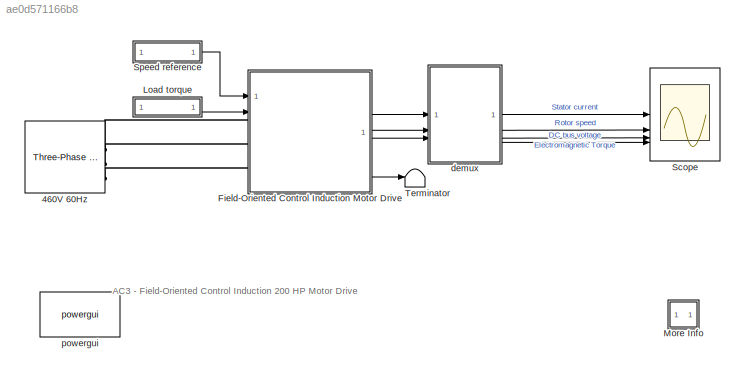
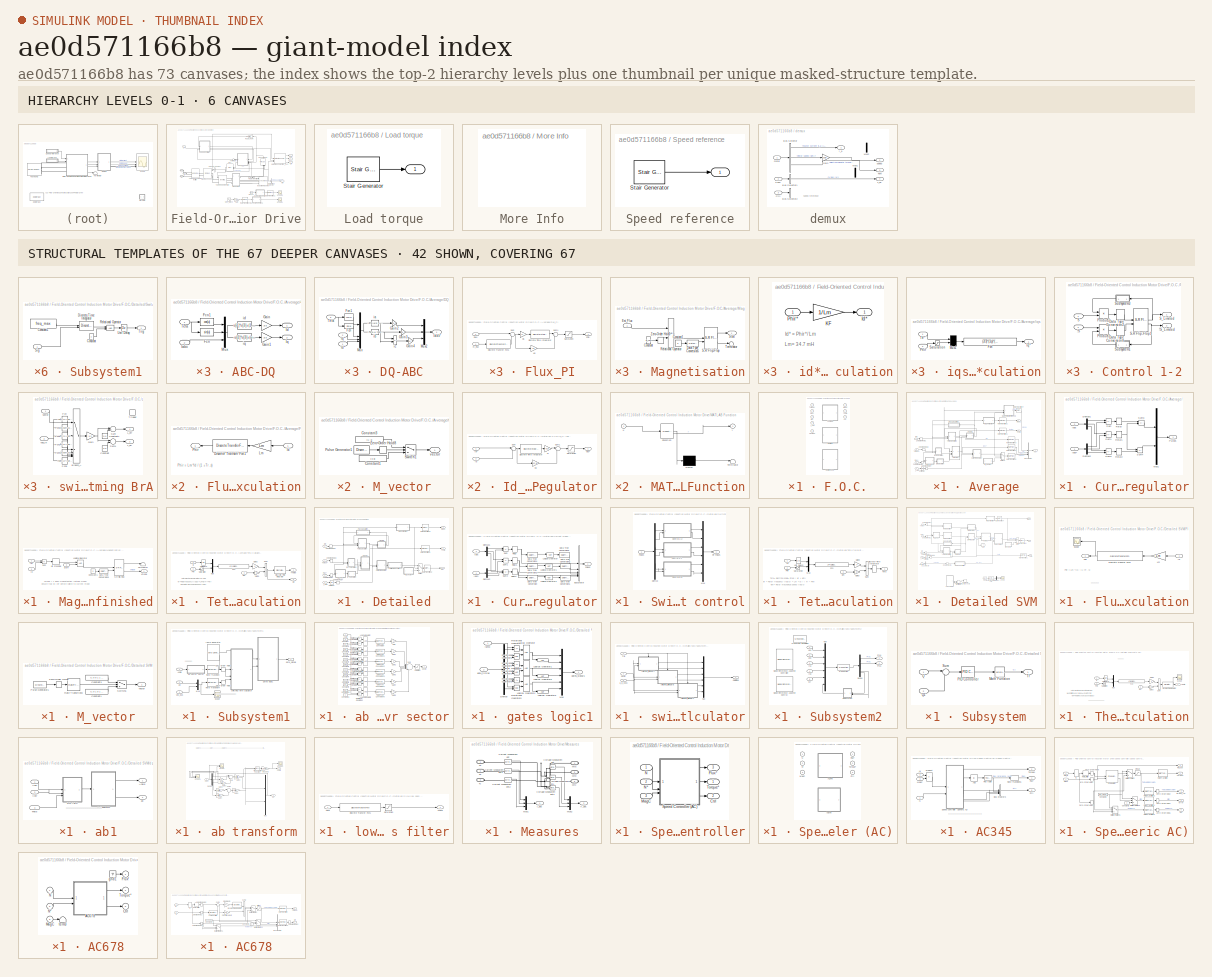
[diagram: thumbnail index - top-2 hierarchy levels (6 canvases) + 42 structural-template representatives of the remaining 67 canvases]
MODEL slx_ae0d571166b8
KIND model
CONFIG AbsTol = auto
CONFIG EnableMultiTasking = on
CONFIG FixedStep = Ts
CONFIG MaxStep = auto
CONFIG MinStep = auto
CONFIG PreLoadFcn = Ts = 2e-6;
CONFIG RelTol = 1e-3
CONFIG SampleTimeConstraint = Unconstrained
CONFIG SolverName = FixedStepDiscrete
CONFIG StartTime = 0.0
CONFIG StopTime = 3
BLOCK [Reference] 460V 60Hz  REF=spsThreePhaseSourceLib/Three-Phase Source
  LibrarySourceBlock = sps_lib/Sources/Three-Phase Source
  SourceBlock = spsThreePhaseSourceLib/Three-Phase Source
  SourceType = Three-Phase Source
BLOCK [SubSystem] Field-Oriented Control Induction Motor Drive
  AncestorBlock = electricdrivelib/AC drives/Field-Oriented Control\nInduction Motor Drive
  DialogController = POWERSYS.PowerSysDialog
  LibrarySourceBlock = electricdrivelib/AC drives/Field-Oriented Control\nInduction Motor Drive
  LoadFcn = if ~isempty(get_param(gcb,'UserData')) \n      UserDataToSimulinkMask(gcbh,get_param(gcb,'driveType'));  \n      set_param(gcb, 'UserData',[]);\n      set_param(gcb,'UserDataPersistent','off');\nend \n\nif strcmp(get_param(gcb,'AverageValue'),'on')\n    set_param(gcb,'modelDetailLevel','Average');\nend
  OpenFcn = sps_rtmsupport('OpenFcn',gcbh)
BLOCK [PMIOPort] Field-Oriented Control Induction Motor Drive/A
  Side = Left
BLOCK [PMIOPort] Field-Oriented Control Induction Motor Drive/B
  Port = 2
  Side = Left
BLOCK [Reference] Field-Oriented Control Induction Motor Drive/Braking chopper  REF=spsDrivesDcBusModel/DC Bus 
  SourceBlock = spsDrivesDcBusModel/DC Bus
  SourceType = DC Bus
BLOCK [PMIOPort] Field-Oriented Control Induction Motor Drive/C
  Port = 3
  Side = Left
BLOCK [Clock] Field-Oriented Control Induction Motor Drive/Clock2
  Commented = on
  Decimation = 3
BLOCK [Outport] Field-Oriented Control Induction Motor Drive/Conv.
  Port = 2
  VectorParamsAs1DForOutWhenUnconnected = off
BLOCK [Outport] Field-Oriented Control Induction Motor Drive/Ctrl
  Port = 3
  VectorParamsAs1DForOutWhenUnconnected = off
BLOCK [SubSystem] Field-Oriented Control Induction Motor Drive/F.O.C.
  AncestorBlock = spsFieldOrientedControllerLib/Field-Oriented Controller
  AttributesFormatString = %<BlockChoice>
  DialogController = POWERSYS.PowerSysDialog
  LabelModeActiveChoice = Detailed_SVM
  LibrarySourceBlock = spsFieldOrientedControllerLib/Field-Oriented Controller
  OpenFcn = sps_rtmsupport('OpenFcn',gcbh)
  Variant = on
  VariantControlMode = label
BLOCK [SubSystem] Field-Oriented Control Induction Motor Drive/F.O.C./Average
  VariantControl = Average
BLOCK [SubSystem] Field-Oriented Control Induction Motor Drive/F.O.C./Average/ABC-DQ
  NameLocation = top
BLOCK [Fcn] Field-Oriented Control Induction Motor Drive/F.O.C./Average/ABC-DQ/Fcn
  Expr = sin(u)
BLOCK [Fcn] Field-Oriented Control Induction Motor Drive/F.O.C./Average/ABC-DQ/Fcn1
  Expr = cos(u)
BLOCK [Gain] Field-Oriented Control Induction Motor Drive/F.O.C./Average/ABC-DQ/Gain
  Gain = 2/3
  OutDataTypeStr = Inherit: Same as input
  ParamDataTypeStr = Inherit: Same as input
  SaturateOnIntegerOverflow = on
BLOCK [Gain] Field-Oriented Control Induction Motor Drive/F.O.C./Average/ABC-DQ/Gain1
  Gain = 2/3
  OutDataTypeStr = Inherit: Same as input
  ParamDataTypeStr = Inherit: Same as input
  SaturateOnIntegerOverflow = on
BLOCK [Inport] Field-Oriented Control Induction Motor Drive/F.O.C./Average/ABC-DQ/Iabc
  Port = 2
BLOCK [Outport] Field-Oriented Control Induction Motor Drive/F.O.C./Average/ABC-DQ/Id
  InitialOutput = 0
  VectorParamsAs1DForOutWhenUnconnected = off
BLOCK [Outport] Field-Oriented Control Induction Motor Drive/F.O.C./Average/ABC-DQ/Iq
  InitialOutput = 0
  Port = 2
  VectorParamsAs1DForOutWhenUnconnected = off
BLOCK [Mux] Field-Oriented Control Induction Motor Drive/F.O.C./Average/ABC-DQ/Mux
  Inputs = [1 1 3]
BLOCK [Inport] Field-Oriented Control Induction Motor Drive/F.O.C./Average/ABC-DQ/Teta
BLOCK [Fcn] Field-Oriented Control Induction Motor Drive/F.O.C./Average/ABC-DQ/id
  Expr = u[1]*u[3]+(1.7320508*u[2]-u[1])*u[4]*0.5+(-u[1]-1.7320508*u[2])*u[5]*0.5
  NameLocation = top
BLOCK [Fcn] Field-Oriented Control Induction Motor Drive/F.O.C./Average/ABC-DQ/iq
  Expr = -u[2]*u[3]+(u[2]+1.7320508*u[1])*u[4]*0.5+(u[2]-1.7320508*u[1])*u[5]*0.5
BLOCK [BusCreator] Field-Oriented Control Induction Motor Drive/F.O.C./Average/Bus Creator
  DisplayOption = bar
  InheritFromInputs = on
  Inputs = 4
BLOCK [SubSystem] Field-Oriented Control Induction Motor Drive/F.O.C./Average/Current Regulator
  NameLocation = top
  TreatAsAtomicUnit = on
BLOCK [Demux] Field-Oriented Control Induction Motor Drive/F.O.C./Average/Current Regulator/Demux1
  DisplayOption = none
  Outputs = 3
BLOCK [Demux] Field-Oriented Control Induction Motor Drive/F.O.C./Average/Current Regulator/Demux2
  DisplayOption = none
  Outputs = 3
BLOCK [Inport] Field-Oriented Control Induction Motor Drive/F.O.C./Average/Current Regulator/Iabc
  Port = 2
BLOCK [Inport] Field-Oriented Control Induction Motor Drive/F.O.C./Average/Current Regulator/Iabc*
BLOCK [Mux] Field-Oriented Control Induction Motor Drive/F.O.C./Average/Current Regulator/Mux1
  Inputs = 2
BLOCK [Outport] Field-Oriented Control Induction Motor Drive/F.O.C./Average/Current Regulator/Pulses
  InitialOutput = 0
  VectorParamsAs1DForOutWhenUnconnected = off
BLOCK [Relay] Field-Oriented Control Induction Motor Drive/F.O.C./Average/Current Regulator/Relay
  OffSwitchValue = -0
  OnSwitchValue = 0
BLOCK [Relay] Field-Oriented Control Induction Motor Drive/F.O.C./Average/Current Regulator/Relay1
  OffSwitchValue = -0
  OnSwitchValue = 0
BLOCK [Relay] Field-Oriented Control Induction Motor Drive/F.O.C./Average/Current Regulator/Relay2
  OffSwitchValue = -0
  OnSwitchValue = 0
BLOCK [Sum] Field-Oriented Control Induction Motor Drive/F.O.C./Average/Current Regulator/Sum
  IconShape = rectangular
  InputSameDT = on
  Inputs = -+
  OutDataTypeStr = Inherit: Same as first input
  SaturateOnIntegerOverflow = on
BLOCK [Sum] Field-Oriented Control Induction Motor Drive/F.O.C./Average/Current Regulator/Sum1
  IconShape = rectangular
  InputSameDT = on
  Inputs = -+
  OutDataTypeStr = Inherit: Same as first input
  SaturateOnIntegerOverflow = on
BLOCK [Sum] Field-Oriented Control Induction Motor Drive/F.O.C./Average/Current Regulator/Sum2
  IconShape = rectangular
  InputSameDT = on
  Inputs = -+
  OutDataTypeStr = Inherit: Same as first input
  SaturateOnIntegerOverflow = on
BLOCK [Sum] Field-Oriented Control Induction Motor Drive/F.O.C./Average/Current Regulator/Sum3
  IconShape = rectangular
  Inputs = +-
BLOCK [Sum] Field-Oriented Control Induction Motor Drive/F.O.C./Average/Current Regulator/Sum4
  IconShape = rectangular
  Inputs = +-
BLOCK [SubSystem] Field-Oriented Control Induction Motor Drive/F.O.C./Average/DQ-ABC
  NameLocation = top
BLOCK [Fcn] Field-Oriented Control Induction Motor Drive/F.O.C./Average/DQ-ABC/Fcn
  Expr = sin(u)
BLOCK [Fcn] Field-Oriented Control Induction Motor Drive/F.O.C./Average/DQ-ABC/Fcn1
  Expr = cos(u)
BLOCK [Gain] Field-Oriented Control Induction Motor Drive/F.O.C./Average/DQ-ABC/Gain2
  OutDataTypeStr = Inherit: Same as input
  ParamDataTypeStr = Inherit: Same as input
  SaturateOnIntegerOverflow = on
BLOCK [Gain] Field-Oriented Control Induction Motor Drive/F.O.C./Average/DQ-ABC/Gain3
  OutDataTypeStr = Inherit: Same as input
  ParamDataTypeStr = Inherit: Same as input
  SaturateOnIntegerOverflow = on
BLOCK [Gain] Field-Oriented Control Induction Motor Drive/F.O.C./Average/DQ-ABC/Gain4
  OutDataTypeStr = Inherit: Same as input
  ParamDataTypeStr = Inherit: Same as input
  SaturateOnIntegerOverflow = on
BLOCK [Outport] Field-Oriented Control Induction Motor Drive/F.O.C./Average/DQ-ABC/Iabc*
  InitialOutput = 0
  VectorParamsAs1DForOutWhenUnconnected = off
BLOCK [Inport] Field-Oriented Control Induction Motor Drive/F.O.C./Average/DQ-ABC/Id*
BLOCK [Inport] Field-Oriented Control Induction Motor Drive/F.O.C./Average/DQ-ABC/Iq*
  Port = 2
BLOCK [Mux] Field-Oriented Control Induction Motor Drive/F.O.C./Average/DQ-ABC/Mux
BLOCK [Mux] Field-Oriented Control Induction Motor Drive/F.O.C./Average/DQ-ABC/Mux2
  Inputs = 3
BLOCK [Inport] Field-Oriented Control Induction Motor Drive/F.O.C./Average/DQ-ABC/Teta
  Port = 3
BLOCK [Fcn] Field-Oriented Control Induction Motor Drive/F.O.C./Average/DQ-ABC/ia
  Expr = -u[3]*u[2] + u[4]*u[1]
  NameLocation = top
BLOCK [Fcn] Field-Oriented Control Induction Motor Drive/F.O.C./Average/DQ-ABC/ib
  Expr = (-u[1]+1.7320508*u[2])*u[4]*0.5+(u[2]+1.7320508*u[1])*u[3]*0.5
BLOCK [Sum] Field-Oriented Control Induction Motor Drive/F.O.C./Average/DQ-ABC/ic
  IconShape = rectangular
  InputSameDT = on
  Inputs = --
  OutDataTypeStr = Inherit: Same as first input
  SaturateOnIntegerOverflow = on
BLOCK [SubSystem] Field-Oriented Control Induction Motor Drive/F.O.C./Average/Flux Calculation
  NameLocation = top
BLOCK [DiscreteTransferFcn] Field-Oriented Control Induction Motor Drive/F.O.C./Average/Flux Calculation/Discrete Transfer Fcn1
  Denominator = [1 -exp(-(Rr/(Lr))*Tvect)]
  InputPortMap = u0
  NameLocation = top
  Numerator = [1-exp(-(Rr/(Lr))*Tvect)]
  SampleTime = Tvect
BLOCK [Inport] Field-Oriented Control Induction Motor Drive/F.O.C./Average/Flux Calculation/Id
BLOCK [Gain] Field-Oriented Control Induction Motor Drive/F.O.C./Average/Flux Calculation/Lm
  Gain = Lm
  OutDataTypeStr = Inherit: Same as input
  ParamDataTypeStr = Inherit: Same as input
  SaturateOnIntegerOverflow = on
BLOCK [Outport] Field-Oriented Control Induction Motor Drive/F.O.C./Average/Flux Calculation/Phir
  VectorParamsAs1DForOutWhenUnconnected = off
BLOCK [Inport] Field-Oriented Control Induction Motor Drive/F.O.C./Average/Flux*
  Port = 2
BLOCK [SubSystem] Field-Oriented Control Induction Motor Drive/F.O.C./Average/Flux_PI
  NameLocation = top
BLOCK [DiscreteTransferFcn] Field-Oriented Control Induction Motor Drive/F.O.C./Average/Flux_PI/Discrete Transfer Fcn1
  Denominator = [1 -exp(-(2*pi*fc)*Tvect)]
  InputPortMap = u0
  Numerator = [1-exp(-(2*pi*fc)*Tvect)]
  SampleTime = Tvect
BLOCK [DiscreteIntegrator] Field-Oriented Control Induction Motor Drive/F.O.C./Average/Flux_PI/Discrete-Time Integrator
  ICPrevOutput = DiscIntNeverNeededParam
  ICPrevScaledInput = DiscIntNeverNeededParam
  IntegratorMethod = Integration: Trapezoidal
  LimitOutput = on
  LowerSaturationLimit = csat(1)
  SampleTime = Tvect
  UpperSaturationLimit = csat(2)
BLOCK [Inport] Field-Oriented Control Induction Motor Drive/F.O.C./Average/Flux_PI/Flux*
  Port = 2
BLOCK [Gain] Field-Oriented Control Induction Motor Drive/F.O.C./Average/Flux_PI/Ki1
  Gain = ki
  OutDataTypeStr = Inherit: Same as input
  ParamDataTypeStr = Inherit: Same as input
  SaturateOnIntegerOverflow = on
BLOCK [Gain] Field-Oriented Control Induction Motor Drive/F.O.C./Average/Flux_PI/Kp
  Gain = kp
  OutDataTypeStr = Inherit: Same as input
  ParamDataTypeStr = Inherit: Same as input
  SaturateOnIntegerOverflow = on
BLOCK [Outport] Field-Oriented Control Induction Motor Drive/F.O.C./Average/Flux_PI/Phir*
  VectorParamsAs1DForOutWhenUnconnected = off
BLOCK [Saturate] Field-Oriented Control Induction Motor Drive/F.O.C./Average/Flux_PI/Saturation
  LowerLimit = csat(1)
  UpperLimit = csat(2)
BLOCK [Sum] Field-Oriented Control Induction Motor Drive/F.O.C./Average/Flux_PI/Sum
  Inputs = |+-
  SaturateOnIntegerOverflow = on
BLOCK [Sum] Field-Oriented Control Induction Motor Drive/F.O.C./Average/Flux_PI/Sum1
  Inputs = |++
  SaturateOnIntegerOverflow = on
BLOCK [Inport] Field-Oriented Control Induction Motor Drive/F.O.C./Average/Flux_PI/m_Flux
BLOCK [Inport] Field-Oriented Control Induction Motor Drive/F.O.C./Average/I_ABC
  Port = 4
BLOCK [SubSystem] Field-Oriented Control Induction Motor Drive/F.O.C./Average/M_vector
BLOCK [Constant] Field-Oriented Control Induction Motor Drive/F.O.C./Average/M_vector/Constant1
  Value = [0 0]
BLOCK [Constant] Field-Oriented Control Induction Motor Drive/F.O.C./Average/M_vector/Constant3
  Value = [1 -1]
BLOCK [DiscretePulseGenerator] Field-Oriented Control Induction Motor Drive/F.O.C./Average/M_vector/Pulse Generator1
  Period = 8
  PulseWidth = 2
  SampleTime = Tvect
BLOCK [Switch] Field-Oriented Control Induction Motor Drive/F.O.C./Average/M_vector/Switch1
  InputSameDT = off
  Threshold = 0.5
BLOCK [ZeroOrderHold] Field-Oriented Control Induction Motor Drive/F.O.C./Average/M_vector/Zero-Order Hold8
  SampleTime = Tvect
BLOCK [Outport] Field-Oriented Control Induction Motor Drive/F.O.C./Average/M_vector/vector
  VectorParamsAs1DForOutWhenUnconnected = off
BLOCK [Outport] Field-Oriented Control Induction Motor Drive/F.O.C./Average/MagC
  VectorParamsAs1DForOutWhenUnconnected = off
BLOCK [SubSystem] Field-Oriented Control Induction Motor Drive/F.O.C./Average/Magnetisation
BLOCK [SubSystem] Field-Oriented Control Induction Motor Drive/F.O.C./Average/Magnetisation finished
BLOCK [Constant] Field-Oriented Control Induction Motor Drive/F.O.C./Average/Magnetisation finished/Constant1
  Value = 0
BLOCK [DataTypeConversion] Field-Oriented Control Induction Motor Drive/F.O.C./Average/Magnetisation finished/Data Type Conversion5
BLOCK [HitCross] Field-Oriented Control Induction Motor Drive/F.O.C./Average/Magnetisation finished/Hit Crossing
BLOCK [Inport] Field-Oriented Control Induction Motor Drive/F.O.C./Average/Magnetisation finished/Id
  Port = 2
BLOCK [Inport] Field-Oriented Control Induction Motor Drive/F.O.C./Average/Magnetisation finished/Id*
BLOCK [Logic] Field-Oriented Control Induction Motor Drive/F.O.C./Average/Magnetisation finished/Logical Operator
  AllPortsSameDT = off
  OutDataTypeStr = boolean
BLOCK [Reference] Field-Oriented Control Induction Motor Drive/F.O.C./Average/Magnetisation finished/S-R Flip-Flop  REF=simulink_extras/Flip Flops/S-R
Flip-Flop
  SourceBlock = simulink_extras/Flip Flops/S-R\nFlip-Flop
  SourceType = SRFlipFlop
BLOCK [Inport] Field-Oriented Control Induction Motor Drive/F.O.C./Average/Magnetisation finished/Start
  Port = 3
BLOCK [Sum] Field-Oriented Control Induction Motor Drive/F.O.C./Average/Magnetisation finished/Sum
  IconShape = rectangular
  Inputs = +-
BLOCK [Terminator] Field-Oriented Control Induction Motor Drive/F.O.C./Average/Magnetisation finished/Terminator
BLOCK [Outport] Field-Oriented Control Induction Motor Drive/F.O.C./Average/Magnetisation finished/Vmode
  VectorParamsAs1DForOutWhenUnconnected = off
BLOCK [Constant] Field-Oriented Control Induction Motor Drive/F.O.C./Average/Magnetisation/Constant
  Value = in_flux
BLOCK [Constant] Field-Oriented Control Induction Motor Drive/F.O.C./Average/Magnetisation/Constant1
  Value = 0
BLOCK [DataTypeConversion] Field-Oriented Control Induction Motor Drive/F.O.C./Average/Magnetisation/Data Type Conversion5
BLOCK [Inport] Field-Oriented Control Induction Motor Drive/F.O.C./Average/Magnetisation/Est_Flux
BLOCK [RelationalOperator] Field-Oriented Control Induction Motor Drive/F.O.C./Average/Magnetisation/Relational Operator
  InputSameDT = off
BLOCK [Reference] Field-Oriented Control Induction Motor Drive/F.O.C./Average/Magnetisation/S-R Flip-Flop  REF=simulink_extras/Flip Flops/S-R
Flip-Flop
  SourceBlock = simulink_extras/Flip Flops/S-R\nFlip-Flop
  SourceType = SRFlipFlop
BLOCK [Outport] Field-Oriented Control Induction Motor Drive/F.O.C./Average/Magnetisation/Start
  VectorParamsAs1DForOutWhenUnconnected = off
BLOCK [Terminator] Field-Oriented Control Induction Motor Drive/F.O.C./Average/Magnetisation/Terminator
BLOCK [ZeroOrderHold] Field-Oriented Control Induction Motor Drive/F.O.C./Average/Magnetisation/Zero-Order Hold5
  SampleTime = Tvect
BLOCK [RateTransition] Field-Oriented Control Induction Motor Drive/F.O.C./Average/Rate Transition1
  OutPortSampleTime = Ts
BLOCK [RateTransition] Field-Oriented Control Induction Motor Drive/F.O.C./Average/Rate Transition2
BLOCK [RateTransition] Field-Oriented Control Induction Motor Drive/F.O.C./Average/Rate Transition3
BLOCK [RateTransition] Field-Oriented Control Induction Motor Drive/F.O.C./Average/Rate Transition4
BLOCK [RateTransition] Field-Oriented Control Induction Motor Drive/F.O.C./Average/Rate Transition5
BLOCK [RateTransition] Field-Oriented Control Induction Motor Drive/F.O.C./Average/Rate Transition7
BLOCK [Switch] Field-Oriented Control Induction Motor Drive/F.O.C./Average/Switch2
  InputSameDT = off
  Threshold = 0.5
BLOCK [SubSystem] Field-Oriented Control Induction Motor Drive/F.O.C./Average/Teta Calculation
  NameLocation = top
BLOCK [DiscreteIntegrator] Field-Oriented Control Induction Motor Drive/F.O.C./Average/Teta Calculation/Discrete-Time Integrator
  ICPrevOutput = DiscIntNeverNeededParam
  ICPrevScaledInput = DiscIntNeverNeededParam
  IntegratorMethod = Integration: Trapezoidal
  SampleTime = Tvect
BLOCK [Fcn] Field-Oriented Control Induction Motor Drive/F.O.C./Average/Teta Calculation/Fcn
  Expr = Lm*u[1]/(u[2]*(Lr/Rr))
BLOCK [Gain] Field-Oriented Control Induction Motor Drive/F.O.C./Average/Teta Calculation/Gain2
  OutDataTypeStr = Inherit: Same as input
  ParamDataTypeStr = Inherit: Same as input
  SaturateOnIntegerOverflow = on
BLOCK [Gain] Field-Oriented Control Induction Motor Drive/F.O.C./Average/Teta Calculation/Gain3
  Gain = p
  OutDataTypeStr = Inherit: Same as input
  ParamDataTypeStr = Inherit: Same as input
  SaturateOnIntegerOverflow = on
BLOCK [Inport] Field-Oriented Control Induction Motor Drive/F.O.C./Average/Teta Calculation/Iq
BLOCK [Mux] Field-Oriented Control Induction Motor Drive/F.O.C./Average/Teta Calculation/Mux
  Inputs = 2
BLOCK [Inport] Field-Oriented Control Induction Motor Drive/F.O.C./Average/Teta Calculation/Phir
  Port = 2
BLOCK [Saturate] Field-Oriented Control Induction Motor Drive/F.O.C./Average/Teta Calculation/Saturation
  LowerLimit = 1e-3
  UpperLimit = inf
BLOCK [Sum] Field-Oriented Control Induction Motor Drive/F.O.C./Average/Teta Calculation/Sum
  IconShape = rectangular
  InputSameDT = on
  OutDataTypeStr = Inherit: Same as first input
  SaturateOnIntegerOverflow = on
BLOCK [Outport] Field-Oriented Control Induction Motor Drive/F.O.C./Average/Teta Calculation/Thetae
  InitialOutput = 0
  VectorParamsAs1DForOutWhenUnconnected = off
BLOCK [UnitDelay] Field-Oriented Control Induction Motor Drive/F.O.C./Average/Teta Calculation/Unit Delay5
  HasFrameUpgradeWarning = on
  NameLocation = top
  SampleTime = Tvect
BLOCK [Outport] Field-Oriented Control Induction Motor Drive/F.O.C./Average/Teta Calculation/we
  InitialOutput = 0
  Port = 2
  VectorParamsAs1DForOutWhenUnconnected = off
BLOCK [Inport] Field-Oriented Control Induction Motor Drive/F.O.C./Average/Teta Calculation/wm
  Port = 3
BLOCK [Outport] Field-Oriented Control Induction Motor Drive/F.O.C./Average/Theta
  Port = 2
  VectorParamsAs1DForOutWhenUnconnected = off
BLOCK [Inport] Field-Oriented Control Induction Motor Drive/F.O.C./Average/Torque*
BLOCK [UnitDelay] Field-Oriented Control Induction Motor Drive/F.O.C./Average/Unit Delay
  HasFrameUpgradeWarning = on
  SampleTime = -1
BLOCK [ZeroOrderHold] Field-Oriented Control Induction Motor Drive/F.O.C./Average/Zero-Order Hold1
  SampleTime = Tvect
BLOCK [ZeroOrderHold] Field-Oriented Control Induction Motor Drive/F.O.C./Average/Zero-Order Hold2
  SampleTime = Tvect
BLOCK [ZeroOrderHold] Field-Oriented Control Induction Motor Drive/F.O.C./Average/Zero-Order Hold3
  SampleTime = Tvect
BLOCK [ZeroOrderHold] Field-Oriented Control Induction Motor Drive/F.O.C./Average/Zero-Order Hold4
  SampleTime = Tvect
BLOCK [SubSystem] Field-Oriented Control Induction Motor Drive/F.O.C./Average/id* Calculation
  NameLocation = top
BLOCK [Outport] Field-Oriented Control Induction Motor Drive/F.O.C./Average/id* Calculation/Id*
  VectorParamsAs1DForOutWhenUnconnected = off
BLOCK [Gain] Field-Oriented Control Induction Motor Drive/F.O.C./Average/id* Calculation/KF
  Gain = 1/Lm
  OutDataTypeStr = Inherit: Same as input
  ParamDataTypeStr = Inherit: Same as input
  SaturateOnIntegerOverflow = on
BLOCK [Inport] Field-Oriented Control Induction Motor Drive/F.O.C./Average/id* Calculation/Phir*
BLOCK [SubSystem] Field-Oriented Control Induction Motor Drive/F.O.C./Average/iqs* Calculation
  NameLocation = top
BLOCK [Fcn] Field-Oriented Control Induction Motor Drive/F.O.C./Average/iqs* Calculation/Fcn
  Expr = (2/3)*(1/p)*(Lr/Lm)*u[1]/(u[2]+1e-3*0)
BLOCK [Outport] Field-Oriented Control Induction Motor Drive/F.O.C./Average/iqs* Calculation/Iq*
  InitialOutput = 0
  VectorParamsAs1DForOutWhenUnconnected = off
BLOCK [Mux] Field-Oriented Control Induction Motor Drive/F.O.C./Average/iqs* Calculation/Mux1
  Inputs = 2
BLOCK [Inport] Field-Oriented Control Induction Motor Drive/F.O.C./Average/iqs* Calculation/Phir
  Port = 2
BLOCK [Saturate] Field-Oriented Control Induction Motor Drive/F.O.C./Average/iqs* Calculation/Saturation
  LowerLimit = 1e-3
  UpperLimit = inf
BLOCK [Inport] Field-Oriented Control Induction Motor Drive/F.O.C./Average/iqs* Calculation/Te*
BLOCK [Outport] Field-Oriented Control Induction Motor Drive/F.O.C./Average/out
  Port = 3
  VectorParamsAs1DForOutWhenUnconnected = off
BLOCK [Inport] Field-Oriented Control Induction Motor Drive/F.O.C./Average/wm
  Port = 3
BLOCK [SubSystem] Field-Oriented Control Induction Motor Drive/F.O.C./Detailed
  VariantControl = Detailed
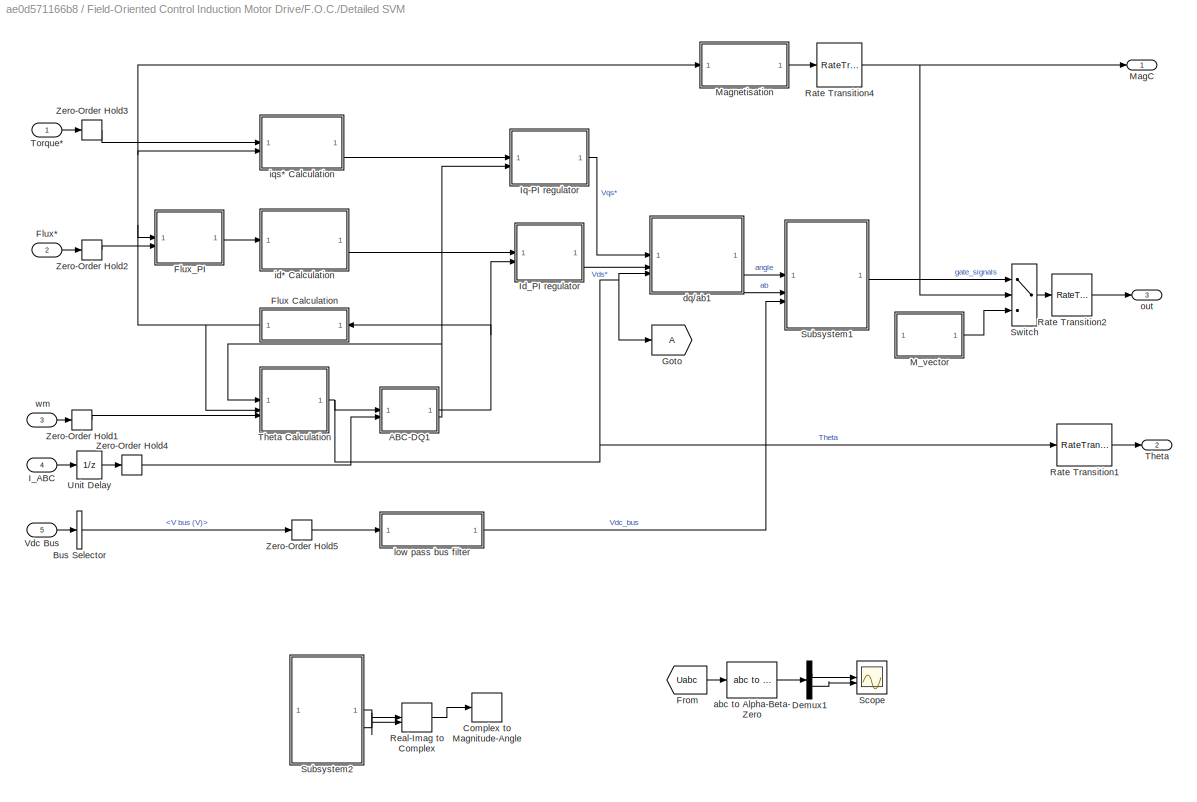
BLOCK [SubSystem] Field-Oriented Control Induction Motor Drive/F.O.C./Detailed SVM
  VariantControl = Detailed_SVM
BLOCK [SubSystem] Field-Oriented Control Induction Motor Drive/F.O.C./Detailed SVM/ABC-DQ1
  NameLocation = top
BLOCK [Fcn] Field-Oriented Control Induction Motor Drive/F.O.C./Detailed SVM/ABC-DQ1/Fcn
  Expr = sin(u)
BLOCK [Fcn] Field-Oriented Control Induction Motor Drive/F.O.C./Detailed SVM/ABC-DQ1/Fcn1
  Expr = cos(u)
BLOCK [Gain] Field-Oriented Control Induction Motor Drive/F.O.C./Detailed SVM/ABC-DQ1/Gain
  Gain = 2/3
  OutDataTypeStr = Inherit: Same as input
  ParamDataTypeStr = Inherit: Same as input
  SaturateOnIntegerOverflow = on
BLOCK [Gain] Field-Oriented Control Induction Motor Drive/F.O.C./Detailed SVM/ABC-DQ1/Gain1
  Gain = 2/3
  OutDataTypeStr = Inherit: Same as input
  ParamDataTypeStr = Inherit: Same as input
  SaturateOnIntegerOverflow = on
BLOCK [Inport] Field-Oriented Control Induction Motor Drive/F.O.C./Detailed SVM/ABC-DQ1/Iabc
  Port = 2
BLOCK [Outport] Field-Oriented Control Induction Motor Drive/F.O.C./Detailed SVM/ABC-DQ1/Id
  InitialOutput = 0
  VectorParamsAs1DForOutWhenUnconnected = off
BLOCK [Outport] Field-Oriented Control Induction Motor Drive/F.O.C./Detailed SVM/ABC-DQ1/Iq
  InitialOutput = 0
  Port = 2
  VectorParamsAs1DForOutWhenUnconnected = off
BLOCK [Mux] Field-Oriented Control Induction Motor Drive/F.O.C./Detailed SVM/ABC-DQ1/Mux
  Inputs = [1 1 3]
BLOCK [Inport] Field-Oriented Control Induction Motor Drive/F.O.C./Detailed SVM/ABC-DQ1/Theta
BLOCK [Fcn] Field-Oriented Control Induction Motor Drive/F.O.C./Detailed SVM/ABC-DQ1/id
  Expr = u[2]*u[3]+(-u[2]-1.7320508*u[1])*u[4]*0.5+(-u[2]+1.7320508*u[1])*u[5]*0.5
  NameLocation = top
BLOCK [Fcn] Field-Oriented Control Induction Motor Drive/F.O.C./Detailed SVM/ABC-DQ1/iq
  Expr = u[1]*u[3]+(1.7320508*u[2]-u[1]) *u[4]*0.5+(-u[1]-1.7320508*u[2])*u[5]*0.5
BLOCK [BusSelector] Field-Oriented Control Induction Motor Drive/F.O.C./Detailed SVM/Bus Selector
  OutputSignals = V bus (V)
BLOCK [ComplexToMagnitudeAngle] Field-Oriented Control Induction Motor Drive/F.O.C./Detailed SVM/Complex to Magnitude-Angle
  Commented = on
BLOCK [Demux] Field-Oriented Control Induction Motor Drive/F.O.C./Detailed SVM/Demux1
  Commented = on
  Outputs = 2
BLOCK [SubSystem] Field-Oriented Control Induction Motor Drive/F.O.C./Detailed SVM/Flux Calculation
  NameLocation = top
BLOCK [DiscreteTransferFcn] Field-Oriented Control Induction Motor Drive/F.O.C./Detailed SVM/Flux Calculation/Discrete Transfer Fcn1
  Denominator = [1 -exp(-(Rr/(Lr))*Tvect)]
  InputPortMap = u0
  NameLocation = top
  Numerator = [1-exp(-(Rr/(Lr))*Tvect)]
  SampleTime = Tvect
BLOCK [Inport] Field-Oriented Control Induction Motor Drive/F.O.C./Detailed SVM/Flux Calculation/Id
BLOCK [Gain] Field-Oriented Control Induction Motor Drive/F.O.C./Detailed SVM/Flux Calculation/Lm
  Gain = Lm
  OutDataTypeStr = Inherit: Same as input
  ParamDataTypeStr = Inherit: Same as input
  SaturateOnIntegerOverflow = on
BLOCK [Outport] Field-Oriented Control Induction Motor Drive/F.O.C./Detailed SVM/Flux Calculation/Phir
  VectorParamsAs1DForOutWhenUnconnected = off
BLOCK [Scope] Field-Oriented Control Induction Motor Drive/F.O.C./Detailed SVM/Flux Calculation/Scope
  Floating = off
  NameLocation = top
  NumInputPorts = 1
  ScopeSpecificationString = Simulink.scopes.TimeScopeBlockCfg('CurrentConfiguration', extmgr.ConfigurationSet(extmgr.Configuration('Core','General UI',true),extmgr.Configuration('Core','Source UI',true),extmgr.Configuration('Sources','WiredSimulink',true,'DataLoggingVariableName','Phir_1_514'),extmgr.Configuration('Visuals','Time Domain',true,'SerializedDisplays',{struct('MinYLimReal','-0.09845','MaxYLimReal','0.88605','YLab...<+1427ch>
BLOCK [Inport] Field-Oriented Control Induction Motor Drive/F.O.C./Detailed SVM/Flux*
  Port = 2
BLOCK [SubSystem] Field-Oriented Control Induction Motor Drive/F.O.C./Detailed SVM/Flux_PI
  NameLocation = top
BLOCK [DiscreteTransferFcn] Field-Oriented Control Induction Motor Drive/F.O.C./Detailed SVM/Flux_PI/Discrete Transfer Fcn1
  Denominator = [1 -exp(-(2*pi*fc)*Tvect)]
  InputPortMap = u0
  Numerator = [1-exp(-(2*pi*fc)*Tvect)]
  SampleTime = Tvect
BLOCK [DiscreteIntegrator] Field-Oriented Control Induction Motor Drive/F.O.C./Detailed SVM/Flux_PI/Discrete-Time Integrator
  ICPrevOutput = DiscIntNeverNeededParam
  ICPrevScaledInput = DiscIntNeverNeededParam
  IntegratorMethod = Integration: Trapezoidal
  LimitOutput = on
  LowerSaturationLimit = csat(1)
  SampleTime = Tvect
  UpperSaturationLimit = csat(2)
BLOCK [Inport] Field-Oriented Control Induction Motor Drive/F.O.C./Detailed SVM/Flux_PI/Flux*
  Port = 2
BLOCK [Gain] Field-Oriented Control Induction Motor Drive/F.O.C./Detailed SVM/Flux_PI/Ki1
  Gain = ki
  OutDataTypeStr = Inherit: Same as input
  ParamDataTypeStr = Inherit: Same as input
  SaturateOnIntegerOverflow = on
BLOCK [Gain] Field-Oriented Control Induction Motor Drive/F.O.C./Detailed SVM/Flux_PI/Kp
  Gain = kp
  OutDataTypeStr = Inherit: Same as input
  ParamDataTypeStr = Inherit: Same as input
  SaturateOnIntegerOverflow = on
BLOCK [Outport] Field-Oriented Control Induction Motor Drive/F.O.C./Detailed SVM/Flux_PI/Phir*
  VectorParamsAs1DForOutWhenUnconnected = off
BLOCK [Saturate] Field-Oriented Control Induction Motor Drive/F.O.C./Detailed SVM/Flux_PI/Saturation
  LowerLimit = csat(1)
  UpperLimit = csat(2)
BLOCK [Sum] Field-Oriented Control Induction Motor Drive/F.O.C./Detailed SVM/Flux_PI/Sum
  Inputs = |+-
  SaturateOnIntegerOverflow = on
BLOCK [Sum] Field-Oriented Control Induction Motor Drive/F.O.C./Detailed SVM/Flux_PI/Sum1
  Inputs = |++
  SaturateOnIntegerOverflow = on
BLOCK [Inport] Field-Oriented Control Induction Motor Drive/F.O.C./Detailed SVM/Flux_PI/m_Flux
BLOCK [From] Field-Oriented Control Induction Motor Drive/F.O.C./Detailed SVM/From
  Commented = on
  GotoTag = Uabc
BLOCK [Goto] Field-Oriented Control Induction Motor Drive/F.O.C./Detailed SVM/Goto
BLOCK [Inport] Field-Oriented Control Induction Motor Drive/F.O.C./Detailed SVM/I_ABC
  Port = 4
BLOCK [SubSystem] Field-Oriented Control Induction Motor Drive/F.O.C./Detailed SVM/Id_PI regulator
  NameLocation = top
BLOCK [DiscreteIntegrator] Field-Oriented Control Induction Motor Drive/F.O.C./Detailed SVM/Id_PI regulator/Discrete-Time Integrator
  ICPrevOutput = DiscIntNeverNeededParam
  ICPrevScaledInput = DiscIntNeverNeededParam
  IntegratorMethod = Integration: Trapezoidal
  LimitOutput = on
  LowerSaturationLimit = -1
  SampleTime = Tvect
  UpperSaturationLimit = 1
BLOCK [Inport] Field-Oriented Control Induction Motor Drive/F.O.C./Detailed SVM/Id_PI regulator/Id
  Port = 2
BLOCK [Inport] Field-Oriented Control Induction Motor Drive/F.O.C./Detailed SVM/Id_PI regulator/Id*
BLOCK [Gain] Field-Oriented Control Induction Motor Drive/F.O.C./Detailed SVM/Id_PI regulator/Ki
  Gain = ki_Id
  OutDataTypeStr = Inherit: Same as input
  ParamDataTypeStr = Inherit: Same as input
  SaturateOnIntegerOverflow = on
BLOCK [Gain] Field-Oriented Control Induction Motor Drive/F.O.C./Detailed SVM/Id_PI regulator/Kp
  Gain = kp_Id
  OutDataTypeStr = Inherit: Same as input
  ParamDataTypeStr = Inherit: Same as input
  SaturateOnIntegerOverflow = on
BLOCK [Saturate] Field-Oriented Control Induction Motor Drive/F.O.C./Detailed SVM/Id_PI regulator/Saturation
  LowerLimit = -inf
  UpperLimit = inf
BLOCK [Sum] Field-Oriented Control Induction Motor Drive/F.O.C./Detailed SVM/Id_PI regulator/Sum
  Inputs = |+-
  SaturateOnIntegerOverflow = on
BLOCK [Sum] Field-Oriented Control Induction Motor Drive/F.O.C./Detailed SVM/Id_PI regulator/Sum1
  Inputs = |++
  SaturateOnIntegerOverflow = on
BLOCK [Outport] Field-Oriented Control Induction Motor Drive/F.O.C./Detailed SVM/Id_PI regulator/Vds*
  VectorParamsAs1DForOutWhenUnconnected = off
BLOCK [SubSystem] Field-Oriented Control Induction Motor Drive/F.O.C./Detailed SVM/Iq-PI regulator
  NameLocation = top
BLOCK [DiscreteIntegrator] Field-Oriented Control Induction Motor Drive/F.O.C./Detailed SVM/Iq-PI regulator/Discrete-Time Integrator
  ICPrevOutput = DiscIntNeverNeededParam
  ICPrevScaledInput = DiscIntNeverNeededParam
  IntegratorMethod = Integration: Trapezoidal
  LimitOutput = on
  LowerSaturationLimit = -1
  SampleTime = Tvect
  UpperSaturationLimit = 1
BLOCK [Inport] Field-Oriented Control Induction Motor Drive/F.O.C./Detailed SVM/Iq-PI regulator/Iq
  Port = 2
BLOCK [Inport] Field-Oriented Control Induction Motor Drive/F.O.C./Detailed SVM/Iq-PI regulator/Iq*
BLOCK [Gain] Field-Oriented Control Induction Motor Drive/F.O.C./Detailed SVM/Iq-PI regulator/Ki
  Gain = ki_Iq
  OutDataTypeStr = Inherit: Same as input
  ParamDataTypeStr = Inherit: Same as input
  SaturateOnIntegerOverflow = on
BLOCK [Gain] Field-Oriented Control Induction Motor Drive/F.O.C./Detailed SVM/Iq-PI regulator/Kp
  Gain = kp_Iq
  OutDataTypeStr = Inherit: Same as input
  ParamDataTypeStr = Inherit: Same as input
  SaturateOnIntegerOverflow = on
BLOCK [Saturate] Field-Oriented Control Induction Motor Drive/F.O.C./Detailed SVM/Iq-PI regulator/Saturation
  LowerLimit = -inf
  UpperLimit = inf
BLOCK [Sum] Field-Oriented Control Induction Motor Drive/F.O.C./Detailed SVM/Iq-PI regulator/Sum
  Inputs = |+-
  SaturateOnIntegerOverflow = on
BLOCK [Sum] Field-Oriented Control Induction Motor Drive/F.O.C./Detailed SVM/Iq-PI regulator/Sum1
  Inputs = |++
  SaturateOnIntegerOverflow = on
BLOCK [Outport] Field-Oriented Control Induction Motor Drive/F.O.C./Detailed SVM/Iq-PI regulator/Vqs*
  VectorParamsAs1DForOutWhenUnconnected = off
BLOCK [SubSystem] Field-Oriented Control Induction Motor Drive/F.O.C./Detailed SVM/M_vector
BLOCK [Constant] Field-Oriented Control Induction Motor Drive/F.O.C./Detailed SVM/M_vector/Constant1
  Value = [1 0 1 0 1 0]
BLOCK [Constant] Field-Oriented Control Induction Motor Drive/F.O.C./Detailed SVM/M_vector/Constant3
  Value = [1 0 0 1 1 0]
BLOCK [DiscretePulseGenerator] Field-Oriented Control Induction Motor Drive/F.O.C./Detailed SVM/M_vector/Pulse Generator1
  Period = 8
  PulseWidth = 2
  SampleTime = Tvect
BLOCK [RateTransition] Field-Oriented Control Induction Motor Drive/F.O.C./Detailed SVM/M_vector/Rate Transition3
BLOCK [Switch] Field-Oriented Control Induction Motor Drive/F.O.C./Detailed SVM/M_vector/Switch1
  InputSameDT = off
  Threshold = 0.5
BLOCK [ZeroOrderHold] Field-Oriented Control Induction Motor Drive/F.O.C./Detailed SVM/M_vector/Zero-Order Hold8
  SampleTime = Tvect
BLOCK [Outport] Field-Oriented Control Induction Motor Drive/F.O.C./Detailed SVM/M_vector/vector
  VectorParamsAs1DForOutWhenUnconnected = off
BLOCK [Outport] Field-Oriented Control Induction Motor Drive/F.O.C./Detailed SVM/MagC
  VectorParamsAs1DForOutWhenUnconnected = off
BLOCK [SubSystem] Field-Oriented Control Induction Motor Drive/F.O.C./Detailed SVM/Magnetisation
BLOCK [Constant] Field-Oriented Control Induction Motor Drive/F.O.C./Detailed SVM/Magnetisation/Constant
  Value = in_flux
BLOCK [Constant] Field-Oriented Control Induction Motor Drive/F.O.C./Detailed SVM/Magnetisation/Constant1
  Value = 0
BLOCK [DataTypeConversion] Field-Oriented Control Induction Motor Drive/F.O.C./Detailed SVM/Magnetisation/Data Type Conversion5
BLOCK [Inport] Field-Oriented Control Induction Motor Drive/F.O.C./Detailed SVM/Magnetisation/Est_Flux
BLOCK [RelationalOperator] Field-Oriented Control Induction Motor Drive/F.O.C./Detailed SVM/Magnetisation/Relational Operator
  InputSameDT = off
BLOCK [Reference] Field-Oriented Control Induction Motor Drive/F.O.C./Detailed SVM/Magnetisation/S-R Flip-Flop  REF=simulink_extras/Flip Flops/S-R
Flip-Flop
  SourceBlock = simulink_extras/Flip Flops/S-R\nFlip-Flop
  SourceType = SRFlipFlop
BLOCK [Outport] Field-Oriented Control Induction Motor Drive/F.O.C./Detailed SVM/Magnetisation/Start
  VectorParamsAs1DForOutWhenUnconnected = off
BLOCK [Terminator] Field-Oriented Control Induction Motor Drive/F.O.C./Detailed SVM/Magnetisation/Terminator
BLOCK [ZeroOrderHold] Field-Oriented Control Induction Motor Drive/F.O.C./Detailed SVM/Magnetisation/Zero-Order Hold5
  SampleTime = Tvect
BLOCK [RateTransition] Field-Oriented Control Induction Motor Drive/F.O.C./Detailed SVM/Rate Transition1
  OutPortSampleTime = Ts
BLOCK [RateTransition] Field-Oriented Control Induction Motor Drive/F.O.C./Detailed SVM/Rate Transition2
BLOCK [RateTransition] Field-Oriented Control Induction Motor Drive/F.O.C./Detailed SVM/Rate Transition4
BLOCK [RealImagToComplex] Field-Oriented Control Induction Motor Drive/F.O.C./Detailed SVM/Real-Imag to Complex
  Commented = on
BLOCK [Scope] Field-Oriented Control Induction Motor Drive/F.O.C./Detailed SVM/Scope
  Commented = on
  Floating = off
  NumInputPorts = 2
  ScopeSpecificationString = Simulink.scopes.TimeScopeBlockCfg('CurrentConfiguration', extmgr.ConfigurationSet(extmgr.Configuration('Core','General UI',true),extmgr.Configuration('Core','Source UI',true),extmgr.Configuration('Sources','WiredSimulink',true,'DataLoggingVariableName','ScopeData1'),extmgr.Configuration('Visuals','Time Domain',true,'SerializedDisplays',{struct('MinYLimReal','-0.000000008','MaxYLimReal','0.00000000...<+1644ch>
BLOCK [SubSystem] Field-Oriented Control Induction Motor Drive/F.O.C./Detailed SVM/Subsystem1
BLOCK [Inport] Field-Oriented Control Induction Motor Drive/F.O.C./Detailed SVM/Subsystem1/Angle
BLOCK [Mux] Field-Oriented Control Induction Motor Drive/F.O.C./Detailed SVM/Subsystem1/Mux
  DisplayOption = bar
  Inputs = 2
BLOCK [RateTransition] Field-Oriented Control Induction Motor Drive/F.O.C./Detailed SVM/Subsystem1/Rate Transition
BLOCK [RateTransition] Field-Oriented Control Induction Motor Drive/F.O.C./Detailed SVM/Subsystem1/Rate Transition4
BLOCK [Scope] Field-Oriented Control Induction Motor Drive/F.O.C./Detailed SVM/Subsystem1/Scope
  Floating = off
  NumInputPorts = 1
  ScopeSpecificationString = Simulink.scopes.TimeScopeBlockCfg('CurrentConfiguration', extmgr.ConfigurationSet(extmgr.Configuration('Core','General UI',true),extmgr.Configuration('Core','Source UI',true),extmgr.Configuration('Sources','WiredSimulink',true,'DataLoggingVariableName','ScopeData4'),extmgr.Configuration('Visuals','Time Domain',true,'SerializedDisplays',{struct('MinYLimReal','-710.6989','MaxYLimReal','1153.88887','...<+1484ch>
BLOCK [Inport] Field-Oriented Control Induction Motor Drive/F.O.C./Detailed SVM/Subsystem1/Vdc_bus
  Port = 3
BLOCK [ZeroOrderHold] Field-Oriented Control Induction Motor Drive/F.O.C./Detailed SVM/Subsystem1/Zero-Order Hold6
  SampleTime = Ts
BLOCK [ZeroOrderHold] Field-Oriented Control Induction Motor Drive/F.O.C./Detailed SVM/Subsystem1/Zero-Order Hold7
  SampleTime = Ts
BLOCK [Inport] Field-Oriented Control Induction Motor Drive/F.O.C./Detailed SVM/Subsystem1/ab
  Port = 2
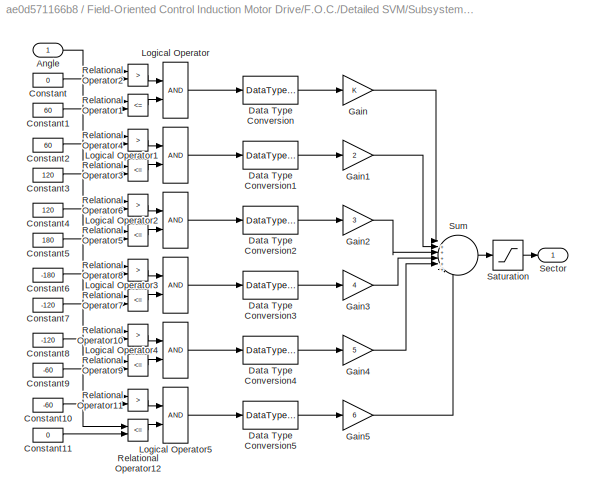
BLOCK [SubSystem] Field-Oriented Control Induction Motor Drive/F.O.C./Detailed SVM/Subsystem1/ab vector sector
BLOCK [Inport] Field-Oriented Control Induction Motor Drive/F.O.C./Detailed SVM/Subsystem1/ab vector sector/Angle
BLOCK [Constant] Field-Oriented Control Induction Motor Drive/F.O.C./Detailed SVM/Subsystem1/ab vector sector/Constant
  Value = 0
BLOCK [Constant] Field-Oriented Control Induction Motor Drive/F.O.C./Detailed SVM/Subsystem1/ab vector sector/Constant1
  Value = 60
BLOCK [Constant] Field-Oriented Control Induction Motor Drive/F.O.C./Detailed SVM/Subsystem1/ab vector sector/Constant10
  Value = -60
BLOCK [Constant] Field-Oriented Control Induction Motor Drive/F.O.C./Detailed SVM/Subsystem1/ab vector sector/Constant11
  Value = 0
BLOCK [Constant] Field-Oriented Control Induction Motor Drive/F.O.C./Detailed SVM/Subsystem1/ab vector sector/Constant2
  Value = 60
BLOCK [Constant] Field-Oriented Control Induction Motor Drive/F.O.C./Detailed SVM/Subsystem1/ab vector sector/Constant3
  Value = 120
BLOCK [Constant] Field-Oriented Control Induction Motor Drive/F.O.C./Detailed SVM/Subsystem1/ab vector sector/Constant4
  Value = 120
BLOCK [Constant] Field-Oriented Control Induction Motor Drive/F.O.C./Detailed SVM/Subsystem1/ab vector sector/Constant5
  Value = 180
BLOCK [Constant] Field-Oriented Control Induction Motor Drive/F.O.C./Detailed SVM/Subsystem1/ab vector sector/Constant6
  Value = -180
BLOCK [Constant] Field-Oriented Control Induction Motor Drive/F.O.C./Detailed SVM/Subsystem1/ab vector sector/Constant7
  Value = -120
BLOCK [Constant] Field-Oriented Control Induction Motor Drive/F.O.C./Detailed SVM/Subsystem1/ab vector sector/Constant8
  Value = -120
BLOCK [Constant] Field-Oriented Control Induction Motor Drive/F.O.C./Detailed SVM/Subsystem1/ab vector sector/Constant9
  Value = -60
BLOCK [DataTypeConversion] Field-Oriented Control Induction Motor Drive/F.O.C./Detailed SVM/Subsystem1/ab vector sector/Data Type Conversion
BLOCK [DataTypeConversion] Field-Oriented Control Induction Motor Drive/F.O.C./Detailed SVM/Subsystem1/ab vector sector/Data Type Conversion1
BLOCK [DataTypeConversion] Field-Oriented Control Induction Motor Drive/F.O.C./Detailed SVM/Subsystem1/ab vector sector/Data Type Conversion2
BLOCK [DataTypeConversion] Field-Oriented Control Induction Motor Drive/F.O.C./Detailed SVM/Subsystem1/ab vector sector/Data Type Conversion3
BLOCK [DataTypeConversion] Field-Oriented Control Induction Motor Drive/F.O.C./Detailed SVM/Subsystem1/ab vector sector/Data Type Conversion4
BLOCK [DataTypeConversion] Field-Oriented Control Induction Motor Drive/F.O.C./Detailed SVM/Subsystem1/ab vector sector/Data Type Conversion5
BLOCK [Gain] Field-Oriented Control Induction Motor Drive/F.O.C./Detailed SVM/Subsystem1/ab vector sector/Gain
  OutDataTypeStr = Inherit: Same as input
  ParamDataTypeStr = Inherit: Same as input
  SaturateOnIntegerOverflow = on
BLOCK [Gain] Field-Oriented Control Induction Motor Drive/F.O.C./Detailed SVM/Subsystem1/ab vector sector/Gain1
  Gain = 2
  OutDataTypeStr = Inherit: Same as input
  ParamDataTypeStr = Inherit: Same as input
  SaturateOnIntegerOverflow = on
BLOCK [Gain] Field-Oriented Control Induction Motor Drive/F.O.C./Detailed SVM/Subsystem1/ab vector sector/Gain2
  Gain = 3
  OutDataTypeStr = Inherit: Same as input
  ParamDataTypeStr = Inherit: Same as input
  SaturateOnIntegerOverflow = on
BLOCK [Gain] Field-Oriented Control Induction Motor Drive/F.O.C./Detailed SVM/Subsystem1/ab vector sector/Gain3
  Gain = 4
  OutDataTypeStr = Inherit: Same as input
  ParamDataTypeStr = Inherit: Same as input
  SaturateOnIntegerOverflow = on
BLOCK [Gain] Field-Oriented Control Induction Motor Drive/F.O.C./Detailed SVM/Subsystem1/ab vector sector/Gain4
  Gain = 5
  OutDataTypeStr = Inherit: Same as input
  ParamDataTypeStr = Inherit: Same as input
  SaturateOnIntegerOverflow = on
BLOCK [Gain] Field-Oriented Control Induction Motor Drive/F.O.C./Detailed SVM/Subsystem1/ab vector sector/Gain5
  Gain = 6
  OutDataTypeStr = Inherit: Same as input
  ParamDataTypeStr = Inherit: Same as input
  SaturateOnIntegerOverflow = on
BLOCK [Logic] Field-Oriented Control Induction Motor Drive/F.O.C./Detailed SVM/Subsystem1/ab vector sector/Logical Operator
BLOCK [Logic] Field-Oriented Control Induction Motor Drive/F.O.C./Detailed SVM/Subsystem1/ab vector sector/Logical Operator1
BLOCK [Logic] Field-Oriented Control Induction Motor Drive/F.O.C./Detailed SVM/Subsystem1/ab vector sector/Logical Operator2
BLOCK [Logic] Field-Oriented Control Induction Motor Drive/F.O.C./Detailed SVM/Subsystem1/ab vector sector/Logical Operator3
BLOCK [Logic] Field-Oriented Control Induction Motor Drive/F.O.C./Detailed SVM/Subsystem1/ab vector sector/Logical Operator4
BLOCK [Logic] Field-Oriented Control Induction Motor Drive/F.O.C./Detailed SVM/Subsystem1/ab vector sector/Logical Operator5
BLOCK [RelationalOperator] Field-Oriented Control Induction Motor Drive/F.O.C./Detailed SVM/Subsystem1/ab vector sector/Relational Operator1
  Operator = <=
BLOCK [RelationalOperator] Field-Oriented Control Induction Motor Drive/F.O.C./Detailed SVM/Subsystem1/ab vector sector/Relational Operator10
  Operator = >
BLOCK [RelationalOperator] Field-Oriented Control Induction Motor Drive/F.O.C./Detailed SVM/Subsystem1/ab vector sector/Relational Operator11
  Operator = >
BLOCK [RelationalOperator] Field-Oriented Control Induction Motor Drive/F.O.C./Detailed SVM/Subsystem1/ab vector sector/Relational Operator12
  Operator = <=
BLOCK [RelationalOperator] Field-Oriented Control Induction Motor Drive/F.O.C./Detailed SVM/Subsystem1/ab vector sector/Relational Operator2
  Operator = >
BLOCK [RelationalOperator] Field-Oriented Control Induction Motor Drive/F.O.C./Detailed SVM/Subsystem1/ab vector sector/Relational Operator3
  Operator = <=
BLOCK [RelationalOperator] Field-Oriented Control Induction Motor Drive/F.O.C./Detailed SVM/Subsystem1/ab vector sector/Relational Operator4
  Operator = >
BLOCK [RelationalOperator] Field-Oriented Control Induction Motor Drive/F.O.C./Detailed SVM/Subsystem1/ab vector sector/Relational Operator5
  Operator = <=
BLOCK [RelationalOperator] Field-Oriented Control Induction Motor Drive/F.O.C./Detailed SVM/Subsystem1/ab vector sector/Relational Operator6
  Operator = >
BLOCK [RelationalOperator] Field-Oriented Control Induction Motor Drive/F.O.C./Detailed SVM/Subsystem1/ab vector sector/Relational Operator7
  Operator = <=
BLOCK [RelationalOperator] Field-Oriented Control Induction Motor Drive/F.O.C./Detailed SVM/Subsystem1/ab vector sector/Relational Operator8
  Operator = >
BLOCK [RelationalOperator] Field-Oriented Control Induction Motor Drive/F.O.C./Detailed SVM/Subsystem1/ab vector sector/Relational Operator9
  Operator = <=
BLOCK [Saturate] Field-Oriented Control Induction Motor Drive/F.O.C./Detailed SVM/Subsystem1/ab vector sector/Saturation
  LowerLimit = 1
  UpperLimit = 6
BLOCK [Outport] Field-Oriented Control Induction Motor Drive/F.O.C./Detailed SVM/Subsystem1/ab vector sector/Sector
  VectorParamsAs1DForOutWhenUnconnected = off
BLOCK [Sum] Field-Oriented Control Induction Motor Drive/F.O.C./Detailed SVM/Subsystem1/ab vector sector/Sum
  InputSameDT = on
  Inputs = |++++++
  OutDataTypeStr = Inherit: Same as first input
  SaturateOnIntegerOverflow = on
BLOCK [Outport] Field-Oriented Control Induction Motor Drive/F.O.C./Detailed SVM/Subsystem1/gate_signals
  VectorParamsAs1DForOutWhenUnconnected = off
BLOCK [SubSystem] Field-Oriented Control Induction Motor Drive/F.O.C./Detailed SVM/Subsystem1/gates logic1
BLOCK [Demux] Field-Oriented Control Induction Motor Drive/F.O.C./Detailed SVM/Subsystem1/gates logic1/Demux
  DisplayOption = none
  Outputs = 6
BLOCK [Logic] Field-Oriented Control Induction Motor Drive/F.O.C./Detailed SVM/Subsystem1/gates logic1/Logical Operator
BLOCK [Logic] Field-Oriented Control Induction Motor Drive/F.O.C./Detailed SVM/Subsystem1/gates logic1/Logical Operator1
  Operator = NOT
BLOCK [Logic] Field-Oriented Control Induction Motor Drive/F.O.C./Detailed SVM/Subsystem1/gates logic1/Logical Operator2
BLOCK [Logic] Field-Oriented Control Induction Motor Drive/F.O.C./Detailed SVM/Subsystem1/gates logic1/Logical Operator3
  Operator = NOT
BLOCK [Logic] Field-Oriented Control Induction Motor Drive/F.O.C./Detailed SVM/Subsystem1/gates logic1/Logical Operator4
BLOCK [Logic] Field-Oriented Control Induction Motor Drive/F.O.C./Detailed SVM/Subsystem1/gates logic1/Logical Operator5
  Operator = NOT
BLOCK [Mux] Field-Oriented Control Induction Motor Drive/F.O.C./Detailed SVM/Subsystem1/gates logic1/Mux
  DisplayOption = bar
  Inputs = 6
BLOCK [RelationalOperator] Field-Oriented Control Induction Motor Drive/F.O.C./Detailed SVM/Subsystem1/gates logic1/Relational Operator1
BLOCK [RelationalOperator] Field-Oriented Control Induction Motor Drive/F.O.C./Detailed SVM/Subsystem1/gates logic1/Relational Operator2
  Operator = <=
BLOCK [RelationalOperator] Field-Oriented Control Induction Motor Drive/F.O.C./Detailed SVM/Subsystem1/gates logic1/Relational Operator3
BLOCK [RelationalOperator] Field-Oriented Control Induction Motor Drive/F.O.C./Detailed SVM/Subsystem1/gates logic1/Relational Operator4
  Operator = <=
BLOCK [RelationalOperator] Field-Oriented Control Induction Motor Drive/F.O.C./Detailed SVM/Subsystem1/gates logic1/Relational Operator5
BLOCK [RelationalOperator] Field-Oriented Control Induction Motor Drive/F.O.C./Detailed SVM/Subsystem1/gates logic1/Relational Operator6
  Operator = <=
BLOCK [Inport] Field-Oriented Control Induction Motor Drive/F.O.C./Detailed SVM/Subsystem1/gates logic1/gate_timing
  Port = 2
BLOCK [Outport] Field-Oriented Control Induction Motor Drive/F.O.C./Detailed SVM/Subsystem1/gates logic1/gates_signals
  VectorParamsAs1DForOutWhenUnconnected = off
BLOCK [Inport] Field-Oriented Control Induction Motor Drive/F.O.C./Detailed SVM/Subsystem1/gates logic1/ramp
BLOCK [Reference] Field-Oriented Control Induction Motor Drive/F.O.C./Detailed SVM/Subsystem1/ramp generator  REF=spsSpaceVectorModulatorLib/Space Vector Modulator/Detailed/ramp generator
  NameLocation = top
  SourceBlock = spsSpaceVectorModulatorLib/Space Vector Modulator/Detailed/ramp generator
  SourceType = SubSystem
BLOCK [SubSystem] Field-Oriented Control Induction Motor Drive/F.O.C./Detailed SVM/Subsystem1/switching time calculator
BLOCK [Outport] Field-Oriented Control Induction Motor Drive/F.O.C./Detailed SVM/Subsystem1/switching time calculator/Gate timing
  VectorParamsAs1DForOutWhenUnconnected = off
BLOCK [Mux] Field-Oriented Control Induction Motor Drive/F.O.C./Detailed SVM/Subsystem1/switching time calculator/Mux
  DisplayOption = bar
  Inputs = 6
BLOCK [Inport] Field-Oriented Control Induction Motor Drive/F.O.C./Detailed SVM/Subsystem1/switching time calculator/Sector
  Port = 2
BLOCK [Inport] Field-Oriented Control Induction Motor Drive/F.O.C./Detailed SVM/Subsystem1/switching time calculator/Trig
BLOCK [Inport] Field-Oriented Control Induction Motor Drive/F.O.C./Detailed SVM/Subsystem1/switching time calculator/a_b_vbus
  Port = 3
BLOCK [SubSystem] Field-Oriented Control Induction Motor Drive/F.O.C./Detailed SVM/Subsystem1/switching time calculator/switching_timing BrA
  TreatAsAtomicUnit = on
BLOCK [MultiPortSwitch] Field-Oriented Control Induction Motor Drive/F.O.C./Detailed SVM/Subsystem1/switching time calculator/switching_timing BrA/Branch_A
  Inputs = 6
BLOCK [Constant] Field-Oriented Control Induction Motor Drive/F.O.C./Detailed SVM/Subsystem1/switching time calculator/switching_timing BrA/Constant
  Value = 0.5
BLOCK [Constant] Field-Oriented Control Induction Motor Drive/F.O.C./Detailed SVM/Subsystem1/switching time calculator/switching_timing BrA/Constant1
  Value = 0.5
BLOCK [Fcn] Field-Oriented Control Induction Motor Drive/F.O.C./Detailed SVM/Subsystem1/switching time calculator/switching_timing BrA/Fcn
  Expr = (sqrt(2)*(sqrt(2)*u(3)+sqrt(3)*u(1)+u(2)))/(4*u(3))
BLOCK [Fcn] Field-Oriented Control Induction Motor Drive/F.O.C./Detailed SVM/Subsystem1/switching time calculator/switching_timing BrA/Fcn1
  Expr = (sqrt(2)*(sqrt(2)*u(3)+sqrt(3)*u(1)+u(2)))/(4*u(3))
BLOCK [Fcn] Field-Oriented Control Induction Motor Drive/F.O.C./Detailed SVM/Subsystem1/switching time calculator/switching_timing BrA/Fcn2
  Expr = (u(3)+sqrt(6)*u(1))/(2*u(3))
BLOCK [Fcn] Field-Oriented Control Induction Motor Drive/F.O.C./Detailed SVM/Subsystem1/switching time calculator/switching_timing BrA/Fcn3
  Expr = (sqrt(2)*(sqrt(2)*u(3)+sqrt(3)*u(1)-u(2)))/(4*u(3))
BLOCK [Fcn] Field-Oriented Control Induction Motor Drive/F.O.C./Detailed SVM/Subsystem1/switching time calculator/switching_timing BrA/Fcn4
  Expr = (u(3)+sqrt(6)*u(1))/(2*u(3))
BLOCK [Fcn] Field-Oriented Control Induction Motor Drive/F.O.C./Detailed SVM/Subsystem1/switching time calculator/switching_timing BrA/Fcn5
  Expr = (sqrt(2)*(sqrt(2)*u(3)+sqrt(3)*u(1)-u(2)))/(4*u(3))
BLOCK [Gain] Field-Oriented Control Induction Motor Drive/F.O.C./Detailed SVM/Subsystem1/switching time calculator/switching_timing BrA/Gain
  Gain = 1/2
  OutDataTypeStr = Inherit: Same as input
  ParamDataTypeStr = Inherit: Same as input
  SaturateOnIntegerOverflow = on
BLOCK [Outport] Field-Oriented Control Induction Motor Drive/F.O.C./Detailed SVM/Subsystem1/switching time calculator/switching_timing BrA/L_off
  VectorParamsAs1DForOutWhenUnconnected = off
BLOCK [Outport] Field-Oriented Control Induction Motor Drive/F.O.C./Detailed SVM/Subsystem1/switching time calculator/switching_timing BrA/L_on
  Port = 2
  VectorParamsAs1DForOutWhenUnconnected = off
BLOCK [Sum] Field-Oriented Control Induction Motor Drive/F.O.C./Detailed SVM/Subsystem1/switching time calculator/switching_timing BrA/Sum
  InputSameDT = on
  Inputs = |++
  OutDataTypeStr = Inherit: Same as first input
  SaturateOnIntegerOverflow = on
BLOCK [Sum] Field-Oriented Control Induction Motor Drive/F.O.C./Detailed SVM/Subsystem1/switching time calculator/switching_timing BrA/Sum1
  InputSameDT = on
  Inputs = |-+
  OutDataTypeStr = Inherit: Same as first input
  SaturateOnIntegerOverflow = on
BLOCK [TriggerPort] Field-Oriented Control Induction Motor Drive/F.O.C./Detailed SVM/Subsystem1/switching time calculator/switching_timing BrA/Trigger
  VariantControl = Variant
BLOCK [Inport] Field-Oriented Control Induction Motor Drive/F.O.C./Detailed SVM/Subsystem1/switching time calculator/switching_timing BrA/sector
BLOCK [Inport] Field-Oriented Control Induction Motor Drive/F.O.C./Detailed SVM/Subsystem1/switching time calculator/switching_timing BrA/vab_in
  Port = 2
BLOCK [SubSystem] Field-Oriented Control Induction Motor Drive/F.O.C./Detailed SVM/Subsystem1/switching time calculator/switching_timing BrB
  TreatAsAtomicUnit = on
BLOCK [MultiPortSwitch] Field-Oriented Control Induction Motor Drive/F.O.C./Detailed SVM/Subsystem1/switching time calculator/switching_timing BrB/Branch_B
  Inputs = 6
BLOCK [Constant] Field-Oriented Control Induction Motor Drive/F.O.C./Detailed SVM/Subsystem1/switching time calculator/switching_timing BrB/Constant
  Value = 0.5
BLOCK [Constant] Field-Oriented Control Induction Motor Drive/F.O.C./Detailed SVM/Subsystem1/switching time calculator/switching_timing BrB/Constant1
  Value = 0.5
BLOCK [Fcn] Field-Oriented Control Induction Motor Drive/F.O.C./Detailed SVM/Subsystem1/switching time calculator/switching_timing BrB/Fcn10
  Expr = (u(3)+sqrt(2)*u(2))/(2*u(3))
BLOCK [Fcn] Field-Oriented Control Induction Motor Drive/F.O.C./Detailed SVM/Subsystem1/switching time calculator/switching_timing BrB/Fcn11
  Expr = (sqrt(2)*(sqrt(2)*u(3)-sqrt(3)*u(1)+u(2)))/(4*u(3))
BLOCK [Fcn] Field-Oriented Control Induction Motor Drive/F.O.C./Detailed SVM/Subsystem1/switching time calculator/switching_timing BrB/Fcn6
  Expr = (sqrt(2)*(sqrt(2)*u(3)-sqrt(3)*u(1)+3*u(2)))/(4*u(3))
BLOCK [Fcn] Field-Oriented Control Induction Motor Drive/F.O.C./Detailed SVM/Subsystem1/switching time calculator/switching_timing BrB/Fcn7
  Expr = (sqrt(2)*(sqrt(2)*u(3)-sqrt(3)*u(1)+3*u(2)))/(4*u(3))
BLOCK [Fcn] Field-Oriented Control Induction Motor Drive/F.O.C./Detailed SVM/Subsystem1/switching time calculator/switching_timing BrB/Fcn8
  Expr = (u(3)+sqrt(2)*u(2))/(2*u(3))
BLOCK [Fcn] Field-Oriented Control Induction Motor Drive/F.O.C./Detailed SVM/Subsystem1/switching time calculator/switching_timing BrB/Fcn9
  Expr = (sqrt(2)*(sqrt(2)*u(3)-sqrt(3)*u(1)+u(2)))/(4*u(3))
BLOCK [Gain] Field-Oriented Control Induction Motor Drive/F.O.C./Detailed SVM/Subsystem1/switching time calculator/switching_timing BrB/Gain
  Gain = 1/2
  OutDataTypeStr = Inherit: Same as input
  ParamDataTypeStr = Inherit: Same as input
  SaturateOnIntegerOverflow = on
BLOCK [Outport] Field-Oriented Control Induction Motor Drive/F.O.C./Detailed SVM/Subsystem1/switching time calculator/switching_timing BrB/L_off
  VectorParamsAs1DForOutWhenUnconnected = off
BLOCK [Outport] Field-Oriented Control Induction Motor Drive/F.O.C./Detailed SVM/Subsystem1/switching time calculator/switching_timing BrB/L_on
  Port = 2
  VectorParamsAs1DForOutWhenUnconnected = off
BLOCK [Sum] Field-Oriented Control Induction Motor Drive/F.O.C./Detailed SVM/Subsystem1/switching time calculator/switching_timing BrB/Sum
  InputSameDT = on
  Inputs = |++
  OutDataTypeStr = Inherit: Same as first input
  SaturateOnIntegerOverflow = on
BLOCK [Sum] Field-Oriented Control Induction Motor Drive/F.O.C./Detailed SVM/Subsystem1/switching time calculator/switching_timing BrB/Sum1
  InputSameDT = on
  Inputs = |-+
  OutDataTypeStr = Inherit: Same as first input
  SaturateOnIntegerOverflow = on
BLOCK [TriggerPort] Field-Oriented Control Induction Motor Drive/F.O.C./Detailed SVM/Subsystem1/switching time calculator/switching_timing BrB/Trigger
  VariantControl = Variant
BLOCK [Inport] Field-Oriented Control Induction Motor Drive/F.O.C./Detailed SVM/Subsystem1/switching time calculator/switching_timing BrB/Vab_inp
  Port = 2
BLOCK [Inport] Field-Oriented Control Induction Motor Drive/F.O.C./Detailed SVM/Subsystem1/switching time calculator/switching_timing BrB/sector
BLOCK [SubSystem] Field-Oriented Control Induction Motor Drive/F.O.C./Detailed SVM/Subsystem1/switching time calculator/switching_timing BrC
  TreatAsAtomicUnit = on
BLOCK [MultiPortSwitch] Field-Oriented Control Induction Motor Drive/F.O.C./Detailed SVM/Subsystem1/switching time calculator/switching_timing BrC/Branch_C
  Inputs = 6
BLOCK [Constant] Field-Oriented Control Induction Motor Drive/F.O.C./Detailed SVM/Subsystem1/switching time calculator/switching_timing BrC/Constant
  Value = 0.5
BLOCK [Constant] Field-Oriented Control Induction Motor Drive/F.O.C./Detailed SVM/Subsystem1/switching time calculator/switching_timing BrC/Constant1
  Value = 0.5
BLOCK [Fcn] Field-Oriented Control Induction Motor Drive/F.O.C./Detailed SVM/Subsystem1/switching time calculator/switching_timing BrC/Fcn12
  Expr = (u(3)-sqrt(2)*u(2))/(2*u(3))
BLOCK [Fcn] Field-Oriented Control Induction Motor Drive/F.O.C./Detailed SVM/Subsystem1/switching time calculator/switching_timing BrC/Fcn13
  Expr = (sqrt(2)*(sqrt(2)*u(3)-sqrt(3)*u(1)-3*u(2)))/(4*u(3))
BLOCK [Fcn] Field-Oriented Control Induction Motor Drive/F.O.C./Detailed SVM/Subsystem1/switching time calculator/switching_timing BrC/Fcn14
  Expr = (sqrt(2)*(sqrt(2)*u(3)-sqrt(3)*u(1)-u(2)))/(4*u(3))
BLOCK [Fcn] Field-Oriented Control Induction Motor Drive/F.O.C./Detailed SVM/Subsystem1/switching time calculator/switching_timing BrC/Fcn15
  Expr = (sqrt(2)*(sqrt(2)*u(3)-sqrt(3)*u(1)-u(2)))/(4*u(3))
BLOCK [Fcn] Field-Oriented Control Induction Motor Drive/F.O.C./Detailed SVM/Subsystem1/switching time calculator/switching_timing BrC/Fcn16
  Expr = (u(3)-sqrt(2)*u(2))/(2*u(3))
BLOCK [Fcn] Field-Oriented Control Induction Motor Drive/F.O.C./Detailed SVM/Subsystem1/switching time calculator/switching_timing BrC/Fcn17
  Expr = (sqrt(2)*(sqrt(2)*u(3)-sqrt(3)*u(1)-3*u(2)))/(4*u(3))
BLOCK [Gain] Field-Oriented Control Induction Motor Drive/F.O.C./Detailed SVM/Subsystem1/switching time calculator/switching_timing BrC/Gain
  Gain = 1/2
  OutDataTypeStr = Inherit: Same as input
  ParamDataTypeStr = Inherit: Same as input
  SaturateOnIntegerOverflow = on
BLOCK [Outport] Field-Oriented Control Induction Motor Drive/F.O.C./Detailed SVM/Subsystem1/switching time calculator/switching_timing BrC/L_off
  VectorParamsAs1DForOutWhenUnconnected = off
BLOCK [Outport] Field-Oriented Control Induction Motor Drive/F.O.C./Detailed SVM/Subsystem1/switching time calculator/switching_timing BrC/L_on
  Port = 2
  VectorParamsAs1DForOutWhenUnconnected = off
BLOCK [Sum] Field-Oriented Control Induction Motor Drive/F.O.C./Detailed SVM/Subsystem1/switching time calculator/switching_timing BrC/Sum
  InputSameDT = on
  Inputs = |++
  OutDataTypeStr = Inherit: Same as first input
  SaturateOnIntegerOverflow = on
BLOCK [Sum] Field-Oriented Control Induction Motor Drive/F.O.C./Detailed SVM/Subsystem1/switching time calculator/switching_timing BrC/Sum1
  InputSameDT = on
  Inputs = |-+
  OutDataTypeStr = Inherit: Same as first input
  SaturateOnIntegerOverflow = on
BLOCK [TriggerPort] Field-Oriented Control Induction Motor Drive/F.O.C./Detailed SVM/Subsystem1/switching time calculator/switching_timing BrC/Trigger
  VariantControl = Variant
BLOCK [Inport] Field-Oriented Control Induction Motor Drive/F.O.C./Detailed SVM/Subsystem1/switching time calculator/switching_timing BrC/Vab_inp
  Port = 2
BLOCK [Inport] Field-Oriented Control Induction Motor Drive/F.O.C./Detailed SVM/Subsystem1/switching time calculator/switching_timing BrC/sector
BLOCK [SubSystem] Field-Oriented Control Induction Motor Drive/F.O.C./Detailed SVM/Subsystem2
  Commented = on
BLOCK [Demux] Field-Oriented Control Induction Motor Drive/F.O.C./Detailed SVM/Subsystem2/Demux
BLOCK [Inport] Field-Oriented Control Induction Motor Drive/F.O.C./Detailed SVM/Subsystem2/Isa
  Port = 3
BLOCK [Inport] Field-Oriented Control Induction Motor Drive/F.O.C./Detailed SVM/Subsystem2/Isb
  Port = 4
BLOCK [Reference] Field-Oriented Control Induction Motor Drive/F.O.C./Detailed SVM/Subsystem2/Model Reference Adaptive Control  REF=slctrlblks/Model Reference Adaptive Control
  LibrarySourceBlock = slctrlblks/SHL Model Reference Adaptive Control
  SourceBlock = slctrlblks/Model Reference Adaptive Control
  SourceType = Model Reference Adaptive Control
BLOCK [Reference] Field-Oriented Control Induction Motor Drive/F.O.C./Detailed SVM/Subsystem2/Model Reference Adaptive Controller  REF=eeAdaptiveController/Model Reference
Adaptive Controller
  LibrarySourceBlock = ee_sl_lib/General Control/Model Reference\nAdaptive Controller
  SourceBlock = eeAdaptiveController/Model Reference\nAdaptive Controller
  SourceType = Model Reference Adaptive Controller
BLOCK [Mux] Field-Oriented Control Induction Motor Drive/F.O.C./Detailed SVM/Subsystem2/Mux
  DisplayOption = bar
  Inputs = 6
BLOCK [Outport] Field-Oriented Control Induction Motor Drive/F.O.C./Detailed SVM/Subsystem2/Pra1
BLOCK [Outport] Field-Oriented Control Induction Motor Drive/F.O.C./Detailed SVM/Subsystem2/Prb1
  Port = 2
BLOCK [S-Function] Field-Oriented Control Induction Motor Drive/F.O.C./Detailed SVM/Subsystem2/S-Function
  EnableBusSupport = off
  FunctionName = MRAS
  Parameters = Lm,Lr,Ls,Sigma,tao
  SFcnIsStateOwnerBlock = off
  SFunctionDeploymentMode = off
BLOCK [Reference] Field-Oriented Control Induction Motor Drive/F.O.C./Detailed SVM/Subsystem2/S-Function Examples  REF=simulink/User-Defined
Functions/S-Function Examples
  SourceBlock = simulink/User-Defined\nFunctions/S-Function Examples
  SourceType = S-Function Examples
BLOCK [SubSystem] Field-Oriented Control Induction Motor Drive/F.O.C./Detailed SVM/Subsystem2/Subsystem
  NameLocation = top
BLOCK [Math] Field-Oriented Control Induction Motor Drive/F.O.C./Detailed SVM/Subsystem2/Subsystem/Math Function
  Operator = reciprocal
BLOCK [Reference] Field-Oriented Control Induction Motor Drive/F.O.C./Detailed SVM/Subsystem2/Subsystem/PID Controller  REF=slpidlib/PID Controller
  LibrarySourceBlock = simulink/Continuous/PID Controller
  SourceBlock = slpidlib/PID Controller
  SourceType = PID 1dof
BLOCK [Inport] Field-Oriented Control Induction Motor Drive/F.O.C./Detailed SVM/Subsystem2/Subsystem/Q
BLOCK [Inport] Field-Oriented Control Induction Motor Drive/F.O.C./Detailed SVM/Subsystem2/Subsystem/Q1
  Port = 2
BLOCK [Sum] Field-Oriented Control Induction Motor Drive/F.O.C./Detailed SVM/Subsystem2/Subsystem/Sum
  Inputs = |++
BLOCK [Outport] Field-Oriented Control Induction Motor Drive/F.O.C./Detailed SVM/Subsystem2/Subsystem/Tr
BLOCK [Inport] Field-Oriented Control Induction Motor Drive/F.O.C./Detailed SVM/Subsystem2/Usa
BLOCK [Inport] Field-Oriented Control Induction Motor Drive/F.O.C./Detailed SVM/Subsystem2/Usb
  Port = 2
BLOCK [Inport] Field-Oriented Control Induction Motor Drive/F.O.C./Detailed SVM/Subsystem2/Wr
  Port = 5
BLOCK [Switch] Field-Oriented Control Induction Motor Drive/F.O.C./Detailed SVM/Switch
  InputSameDT = off
  Threshold = 0.5
BLOCK [Outport] Field-Oriented Control Induction Motor Drive/F.O.C./Detailed SVM/Theta
  Port = 2
  VectorParamsAs1DForOutWhenUnconnected = off
BLOCK [SubSystem] Field-Oriented Control Induction Motor Drive/F.O.C./Detailed SVM/Theta Calculation
  NameLocation = top
BLOCK [DiscreteIntegrator] Field-Oriented Control Induction Motor Drive/F.O.C./Detailed SVM/Theta Calculation/Discrete-Time Integrator
  ICPrevOutput = DiscIntNeverNeededParam
  ICPrevScaledInput = DiscIntNeverNeededParam
  IntegratorMethod = Integration: Trapezoidal
  SampleTime = Tvect
BLOCK [Fcn] Field-Oriented Control Induction Motor Drive/F.O.C./Detailed SVM/Theta Calculation/Fcn
  Expr = Lm*u[1]/(u[2]*(Lr/Rr)+1e-3*0)
BLOCK [Gain] Field-Oriented Control Induction Motor Drive/F.O.C./Detailed SVM/Theta Calculation/Gain2
  OutDataTypeStr = Inherit: Same as input
  ParamDataTypeStr = Inherit: Same as input
  SaturateOnIntegerOverflow = on
BLOCK [Gain] Field-Oriented Control Induction Motor Drive/F.O.C./Detailed SVM/Theta Calculation/Gain3
  Gain = p
  OutDataTypeStr = Inherit: Same as input
  ParamDataTypeStr = Inherit: Same as input
  SaturateOnIntegerOverflow = on
BLOCK [Inport] Field-Oriented Control Induction Motor Drive/F.O.C./Detailed SVM/Theta Calculation/Iq
BLOCK [Mux] Field-Oriented Control Induction Motor Drive/F.O.C./Detailed SVM/Theta Calculation/Mux
  Inputs = 2
BLOCK [Inport] Field-Oriented Control Induction Motor Drive/F.O.C./Detailed SVM/Theta Calculation/Phir
  Port = 2
BLOCK [Saturate] Field-Oriented Control Induction Motor Drive/F.O.C./Detailed SVM/Theta Calculation/Saturation
  LowerLimit = 1e-3
  UpperLimit = inf
BLOCK [Scope] Field-Oriented Control Induction Motor Drive/F.O.C./Detailed SVM/Theta Calculation/Scope
  Floating = off
  NumInputPorts = 1
  ScopeSpecificationString = Simulink.scopes.TimeScopeBlockCfg('CurrentConfiguration', extmgr.ConfigurationSet(extmgr.Configuration('Core','General UI',true),extmgr.Configuration('Core','Source UI',true),extmgr.Configuration('Sources','WiredSimulink',true,'DataLoggingVariableName','Theta_1_514'),extmgr.Configuration('Visuals','Time Domain',true,'SerializedDisplays',{struct('MinYLimReal','-12.88705','MaxYLimReal','115.98347','...<+1437ch>
BLOCK [Sum] Field-Oriented Control Induction Motor Drive/F.O.C./Detailed SVM/Theta Calculation/Sum
  IconShape = rectangular
  InputSameDT = on
  OutDataTypeStr = Inherit: Same as first input
  SaturateOnIntegerOverflow = on
BLOCK [Outport] Field-Oriented Control Induction Motor Drive/F.O.C./Detailed SVM/Theta Calculation/Theta
  InitialOutput = 0
  VectorParamsAs1DForOutWhenUnconnected = off
BLOCK [UnitDelay] Field-Oriented Control Induction Motor Drive/F.O.C./Detailed SVM/Theta Calculation/Unit Delay5
  HasFrameUpgradeWarning = on
  NameLocation = top
  SampleTime = Tvect
BLOCK [Inport] Field-Oriented Control Induction Motor Drive/F.O.C./Detailed SVM/Theta Calculation/wm
  Port = 3
BLOCK [Inport] Field-Oriented Control Induction Motor Drive/F.O.C./Detailed SVM/Torque*
BLOCK [UnitDelay] Field-Oriented Control Induction Motor Drive/F.O.C./Detailed SVM/Unit Delay
  HasFrameUpgradeWarning = on
  SampleTime = -1
BLOCK [Inport] Field-Oriented Control Induction Motor Drive/F.O.C./Detailed SVM/Vdc Bus
  Port = 5
BLOCK [ZeroOrderHold] Field-Oriented Control Induction Motor Drive/F.O.C./Detailed SVM/Zero-Order Hold1
  SampleTime = Tvect
BLOCK [ZeroOrderHold] Field-Oriented Control Induction Motor Drive/F.O.C./Detailed SVM/Zero-Order Hold2
  SampleTime = Tvect
BLOCK [ZeroOrderHold] Field-Oriented Control Induction Motor Drive/F.O.C./Detailed SVM/Zero-Order Hold3
  SampleTime = Tvect
BLOCK [ZeroOrderHold] Field-Oriented Control Induction Motor Drive/F.O.C./Detailed SVM/Zero-Order Hold4
  SampleTime = Tvect
BLOCK [ZeroOrderHold] Field-Oriented Control Induction Motor Drive/F.O.C./Detailed SVM/Zero-Order Hold5
  SampleTime = Tvect
BLOCK [Reference] Field-Oriented Control Induction Motor Drive/F.O.C./Detailed SVM/abc to Alpha-Beta-Zero  REF=spsabctoAlphaBetaZeroLib/abc to
Alpha-Beta-Zero
  Commented = on
  LibrarySourceBlock = sps_lib/Control/abc to\nAlpha-Beta-Zero
  SourceBlock = spsabctoAlphaBetaZeroLib/abc to\nAlpha-Beta-Zero
  SourceType = abc to Alpha-Beta-Zero Transformation
BLOCK [SubSystem] Field-Oriented Control Induction Motor Drive/F.O.C./Detailed SVM/dq//ab1
BLOCK [Outport] Field-Oriented Control Induction Motor Drive/F.O.C./Detailed SVM/dq//ab1/Angle
  VectorParamsAs1DForOutWhenUnconnected = off
BLOCK [SubSystem] Field-Oriented Control Induction Motor Drive/F.O.C./Detailed SVM/dq//ab1/DQ-ABC
  NameLocation = top
BLOCK [Fcn] Field-Oriented Control Induction Motor Drive/F.O.C./Detailed SVM/dq//ab1/DQ-ABC/Fcn
  Expr = sin(u)
BLOCK [Fcn] Field-Oriented Control Induction Motor Drive/F.O.C./Detailed SVM/dq//ab1/DQ-ABC/Fcn1
  Expr = cos(u)
BLOCK [Gain] Field-Oriented Control Induction Motor Drive/F.O.C./Detailed SVM/dq//ab1/DQ-ABC/Gain2
  OutDataTypeStr = Inherit: Same as input
  ParamDataTypeStr = Inherit: Same as input
  SaturateOnIntegerOverflow = on
BLOCK [Gain] Field-Oriented Control Induction Motor Drive/F.O.C./Detailed SVM/dq//ab1/DQ-ABC/Gain3
  OutDataTypeStr = Inherit: Same as input
  ParamDataTypeStr = Inherit: Same as input
  SaturateOnIntegerOverflow = on
BLOCK [Gain] Field-Oriented Control Induction Motor Drive/F.O.C./Detailed SVM/dq//ab1/DQ-ABC/Gain4
  OutDataTypeStr = Inherit: Same as input
  ParamDataTypeStr = Inherit: Same as input
  SaturateOnIntegerOverflow = on
BLOCK [Mux] Field-Oriented Control Induction Motor Drive/F.O.C./Detailed SVM/dq//ab1/DQ-ABC/Mux
BLOCK [Mux] Field-Oriented Control Induction Motor Drive/F.O.C./Detailed SVM/dq//ab1/DQ-ABC/Mux2
  Inputs = 3
BLOCK [Inport] Field-Oriented Control Induction Motor Drive/F.O.C./Detailed SVM/dq//ab1/DQ-ABC/Teta
  Port = 3
BLOCK [Outport] Field-Oriented Control Induction Motor Drive/F.O.C./Detailed SVM/dq//ab1/DQ-ABC/Vabc*
  InitialOutput = 0
  VectorParamsAs1DForOutWhenUnconnected = off
BLOCK [Inport] Field-Oriented Control Induction Motor Drive/F.O.C./Detailed SVM/dq//ab1/DQ-ABC/Vd*
  Port = 2
BLOCK [Inport] Field-Oriented Control Induction Motor Drive/F.O.C./Detailed SVM/dq//ab1/DQ-ABC/Vq*
BLOCK [Fcn] Field-Oriented Control Induction Motor Drive/F.O.C./Detailed SVM/dq//ab1/DQ-ABC/ia
  Expr = u[3]*u[1] + u[4]*u[2]
  NameLocation = top
BLOCK [Fcn] Field-Oriented Control Induction Motor Drive/F.O.C./Detailed SVM/dq//ab1/DQ-ABC/ib
  Expr = (-u[2]-1.7320508*u[1])*u[4]*0.5+(-u[1]+1.7320508*u[2])*u[3]*0.5
BLOCK [Sum] Field-Oriented Control Induction Motor Drive/F.O.C./Detailed SVM/dq//ab1/DQ-ABC/ic
  IconShape = rectangular
  InputSameDT = on
  Inputs = --
  OutDataTypeStr = Inherit: Same as first input
  SaturateOnIntegerOverflow = on
BLOCK [Inport] Field-Oriented Control Induction Motor Drive/F.O.C./Detailed SVM/dq//ab1/Theta
  NameLocation = top
  Port = 3
BLOCK [Inport] Field-Oriented Control Induction Motor Drive/F.O.C./Detailed SVM/dq//ab1/Vds*
  Port = 2
BLOCK [Inport] Field-Oriented Control Induction Motor Drive/F.O.C./Detailed SVM/dq//ab1/Vqs*
BLOCK [Outport] Field-Oriented Control Induction Motor Drive/F.O.C./Detailed SVM/dq//ab1/ab
  Port = 2
  VectorParamsAs1DForOutWhenUnconnected = off
BLOCK [SubSystem] Field-Oriented Control Induction Motor Drive/F.O.C./Detailed SVM/dq//ab1/ab transform
  NameLocation = top
BLOCK [Outport] Field-Oriented Control Induction Motor Drive/F.O.C./Detailed SVM/dq//ab1/ab transform/Angle
  VectorParamsAs1DForOutWhenUnconnected = off
BLOCK [Demux] Field-Oriented Control Induction Motor Drive/F.O.C./Detailed SVM/dq//ab1/ab transform/Demux
  DisplayOption = none
  Outputs = 3
BLOCK [Gain] Field-Oriented Control Induction Motor Drive/F.O.C./Detailed SVM/dq//ab1/ab transform/Gain
  Gain = 1/2
  OutDataTypeStr = Inherit: Same as input
  ParamDataTypeStr = Inherit: Same as input
  SaturateOnIntegerOverflow = on
BLOCK [Gain] Field-Oriented Control Induction Motor Drive/F.O.C./Detailed SVM/dq//ab1/ab transform/Gain1
  Gain = 1/2
  OutDataTypeStr = Inherit: Same as input
  ParamDataTypeStr = Inherit: Same as input
  SaturateOnIntegerOverflow = on
BLOCK [Gain] Field-Oriented Control Induction Motor Drive/F.O.C./Detailed SVM/dq//ab1/ab transform/Gain2
  Gain = sqrt(2/3)
  OutDataTypeStr = Inherit: Same as input
  ParamDataTypeStr = Inherit: Same as input
  SaturateOnIntegerOverflow = on
BLOCK [Gain] Field-Oriented Control Induction Motor Drive/F.O.C./Detailed SVM/dq//ab1/ab transform/Gain3
  Gain = sqrt(3)/2
  OutDataTypeStr = Inherit: Same as input
  ParamDataTypeStr = Inherit: Same as input
  SaturateOnIntegerOverflow = on
BLOCK [Gain] Field-Oriented Control Induction Motor Drive/F.O.C./Detailed SVM/dq//ab1/ab transform/Gain4
  Gain = sqrt(3)/2
  OutDataTypeStr = Inherit: Same as input
  ParamDataTypeStr = Inherit: Same as input
  SaturateOnIntegerOverflow = on
BLOCK [Gain] Field-Oriented Control Induction Motor Drive/F.O.C./Detailed SVM/dq//ab1/ab transform/Gain5
  Gain = sqrt(2/3)
  OutDataTypeStr = Inherit: Same as input
  ParamDataTypeStr = Inherit: Same as input
  SaturateOnIntegerOverflow = on
BLOCK [Mux] Field-Oriented Control Induction Motor Drive/F.O.C./Detailed SVM/dq//ab1/ab transform/Mux
  DisplayOption = bar
  Inputs = 2
BLOCK [Scope] Field-Oriented Control Induction Motor Drive/F.O.C./Detailed SVM/dq//ab1/ab transform/Scope
  Floating = off
  NumInputPorts = 2
  ScopeSpecificationString = Simulink.scopes.TimeScopeBlockCfg('CurrentConfiguration', extmgr.ConfigurationSet(extmgr.Configuration('Core','General UI',true),extmgr.Configuration('Core','Source UI',true),extmgr.Configuration('Sources','WiredSimulink',true,'DataLoggingVariableName','ScopeData1'),extmgr.Configuration('Visuals','Time Domain',true,'SerializedDisplays',{struct('MinYLimReal','-10378.86611','MaxYLimReal','17900.5958...<+2129ch>
BLOCK [Scope] Field-Oriented Control Induction Motor Drive/F.O.C./Detailed SVM/dq//ab1/ab transform/Scope1
  Floating = off
  NumInputPorts = 3
  ScopeSpecificationString = Simulink.scopes.TimeScopeBlockCfg('CurrentConfiguration', extmgr.ConfigurationSet(extmgr.Configuration('Core','General UI',true),extmgr.Configuration('Core','Source UI',true),extmgr.Configuration('Sources','WiredSimulink',true,'DataLoggingVariableName','ScopeData2'),extmgr.Configuration('Visuals','Time Domain',true,'SerializedDisplays',{struct('MinYLimReal','-1332.03102','MaxYLimReal','1057.00015'...<+1504ch>
BLOCK [Scope] Field-Oriented Control Induction Motor Drive/F.O.C./Detailed SVM/dq//ab1/ab transform/Scope2
  Floating = off
  NumInputPorts = 1
  ScopeSpecificationString = Simulink.scopes.TimeScopeBlockCfg('CurrentConfiguration', extmgr.ConfigurationSet(extmgr.Configuration('Core','General UI',true),extmgr.Configuration('Core','Source UI',true),extmgr.Configuration('Sources','WiredSimulink',true,'DataLoggingVariableName','ScopeData3'),extmgr.Configuration('Visuals','Time Domain',true,'SerializedDisplays',{struct('MinYLimReal','-224.9991','MaxYLimReal','224.99953','Y...<+1468ch>
BLOCK [Sum] Field-Oriented Control Induction Motor Drive/F.O.C./Detailed SVM/dq//ab1/ab transform/Sum
  InputSameDT = on
  Inputs = |+--
  OutDataTypeStr = Inherit: Same as first input
  SaturateOnIntegerOverflow = on
BLOCK [Sum] Field-Oriented Control Induction Motor Drive/F.O.C./Detailed SVM/dq//ab1/ab transform/Sum1
  InputSameDT = on
  Inputs = |+-
  OutDataTypeStr = Inherit: Same as first input
  SaturateOnIntegerOverflow = on
BLOCK [Trigonometry] Field-Oriented Control Induction Motor Drive/F.O.C./Detailed SVM/dq//ab1/ab transform/Trigonometric Function
  Operator = atan2
BLOCK [Inport] Field-Oriented Control Induction Motor Drive/F.O.C./Detailed SVM/dq//ab1/ab transform/Vabc
BLOCK [Outport] Field-Oriented Control Induction Motor Drive/F.O.C./Detailed SVM/dq//ab1/ab transform/ab
  Port = 2
  VectorParamsAs1DForOutWhenUnconnected = off
BLOCK [Gain] Field-Oriented Control Induction Motor Drive/F.O.C./Detailed SVM/dq//ab1/ab transform/rad2deg
  Gain = 180/pi
  OutDataTypeStr = Inherit: Same as input
  ParamDataTypeStr = Inherit: Same as input
  SaturateOnIntegerOverflow = on
BLOCK [SubSystem] Field-Oriented Control Induction Motor Drive/F.O.C./Detailed SVM/id* Calculation
  NameLocation = top
BLOCK [Outport] Field-Oriented Control Induction Motor Drive/F.O.C./Detailed SVM/id* Calculation/Id*
  VectorParamsAs1DForOutWhenUnconnected = off
BLOCK [Gain] Field-Oriented Control Induction Motor Drive/F.O.C./Detailed SVM/id* Calculation/KF
  Gain = 1/Lm
  OutDataTypeStr = Inherit: Same as input
  ParamDataTypeStr = Inherit: Same as input
  SaturateOnIntegerOverflow = on
BLOCK [Inport] Field-Oriented Control Induction Motor Drive/F.O.C./Detailed SVM/id* Calculation/Phir*
BLOCK [SubSystem] Field-Oriented Control Induction Motor Drive/F.O.C./Detailed SVM/iqs* Calculation
  NameLocation = top
BLOCK [Fcn] Field-Oriented Control Induction Motor Drive/F.O.C./Detailed SVM/iqs* Calculation/Fcn
  Expr = (2/3)*(1/p)*(Lr/Lm)*u[1]/(u[2]+1e-3*0)
BLOCK [Outport] Field-Oriented Control Induction Motor Drive/F.O.C./Detailed SVM/iqs* Calculation/Iq*
  InitialOutput = 0
  VectorParamsAs1DForOutWhenUnconnected = off
BLOCK [Mux] Field-Oriented Control Induction Motor Drive/F.O.C./Detailed SVM/iqs* Calculation/Mux1
  Inputs = 2
BLOCK [Inport] Field-Oriented Control Induction Motor Drive/F.O.C./Detailed SVM/iqs* Calculation/Phir
  Port = 2
BLOCK [Saturate] Field-Oriented Control Induction Motor Drive/F.O.C./Detailed SVM/iqs* Calculation/Saturation
  LowerLimit = 1e-3
  UpperLimit = inf
BLOCK [Inport] Field-Oriented Control Induction Motor Drive/F.O.C./Detailed SVM/iqs* Calculation/Te*
BLOCK [SubSystem] Field-Oriented Control Induction Motor Drive/F.O.C./Detailed SVM/low pass bus filter
  NameLocation = top
BLOCK [DiscreteTransferFcn] Field-Oriented Control Induction Motor Drive/F.O.C./Detailed SVM/low pass bus filter/Discrete Transfer Fcn1
  Denominator = [1 -exp(-2*pi*fc_bus*Tvect)]
  InputPortMap = u0
  Numerator = [1-exp(-2*pi*fc_bus*Tvect)]
  SampleTime = Tvect
BLOCK [Outport] Field-Oriented Control Induction Motor Drive/F.O.C./Detailed SVM/low pass bus filter/FVbus
  VectorParamsAs1DForOutWhenUnconnected = off
BLOCK [Saturate] Field-Oriented Control Induction Motor Drive/F.O.C./Detailed SVM/low pass bus filter/Saturation
  LowerLimit = 1
  UpperLimit = inf
BLOCK [Inport] Field-Oriented Control Induction Motor Drive/F.O.C./Detailed SVM/low pass bus filter/Vbus
BLOCK [Outport] Field-Oriented Control Induction Motor Drive/F.O.C./Detailed SVM/out
  Port = 3
  VectorParamsAs1DForOutWhenUnconnected = off
BLOCK [Inport] Field-Oriented Control Induction Motor Drive/F.O.C./Detailed SVM/wm
  Port = 3
BLOCK [SubSystem] Field-Oriented Control Induction Motor Drive/F.O.C./Detailed/ABC-DQ
  NameLocation = top
BLOCK [Fcn] Field-Oriented Control Induction Motor Drive/F.O.C./Detailed/ABC-DQ/Fcn
  Expr = sin(u)
BLOCK [Fcn] Field-Oriented Control Induction Motor Drive/F.O.C./Detailed/ABC-DQ/Fcn1
  Expr = cos(u)
BLOCK [Gain] Field-Oriented Control Induction Motor Drive/F.O.C./Detailed/ABC-DQ/Gain
  Gain = 2/3
  OutDataTypeStr = Inherit: Same as input
  ParamDataTypeStr = Inherit: Same as input
  SaturateOnIntegerOverflow = on
BLOCK [Gain] Field-Oriented Control Induction Motor Drive/F.O.C./Detailed/ABC-DQ/Gain1
  Gain = 2/3
  OutDataTypeStr = Inherit: Same as input
  ParamDataTypeStr = Inherit: Same as input
  SaturateOnIntegerOverflow = on
BLOCK [Inport] Field-Oriented Control Induction Motor Drive/F.O.C./Detailed/ABC-DQ/Iabc
  Port = 2
BLOCK [Outport] Field-Oriented Control Induction Motor Drive/F.O.C./Detailed/ABC-DQ/Id
  InitialOutput = 0
  VectorParamsAs1DForOutWhenUnconnected = off
BLOCK [Outport] Field-Oriented Control Induction Motor Drive/F.O.C./Detailed/ABC-DQ/Iq
  InitialOutput = 0
  Port = 2
  VectorParamsAs1DForOutWhenUnconnected = off
BLOCK [Mux] Field-Oriented Control Induction Motor Drive/F.O.C./Detailed/ABC-DQ/Mux
  Inputs = [1 1 3]
BLOCK [Inport] Field-Oriented Control Induction Motor Drive/F.O.C./Detailed/ABC-DQ/Teta
BLOCK [Fcn] Field-Oriented Control Induction Motor Drive/F.O.C./Detailed/ABC-DQ/id
  Expr = u[1]*u[3]+(1.7320508*u[2]-u[1])*u[4]*0.5+(-u[1]-1.7320508*u[2])*u[5]*0.5
  NameLocation = top
BLOCK [Fcn] Field-Oriented Control Induction Motor Drive/F.O.C./Detailed/ABC-DQ/iq
  Expr = -u[2]*u[3]+(u[2]+1.7320508*u[1])*u[4]*0.5+(u[2]-1.7320508*u[1])*u[5]*0.5
BLOCK [SubSystem] Field-Oriented Control Induction Motor Drive/F.O.C./Detailed/Current Regulator
  NameLocation = top
BLOCK [BusCreator] Field-Oriented Control Induction Motor Drive/F.O.C./Detailed/Current Regulator/BusCreator
  InheritFromInputs = on
  Inputs = 6
BLOCK [DataTypeConversion] Field-Oriented Control Induction Motor Drive/F.O.C./Detailed/Current Regulator/Data Type Conversion
BLOCK [DataTypeConversion] Field-Oriented Control Induction Motor Drive/F.O.C./Detailed/Current Regulator/Data Type Conversion1
BLOCK [DataTypeConversion] Field-Oriented Control Induction Motor Drive/F.O.C./Detailed/Current Regulator/Data Type Conversion2
BLOCK [DataTypeConversion] Field-Oriented Control Induction Motor Drive/F.O.C./Detailed/Current Regulator/Data Type Conversion3
BLOCK [DataTypeConversion] Field-Oriented Control Induction Motor Drive/F.O.C./Detailed/Current Regulator/Data Type Conversion4
BLOCK [DataTypeConversion] Field-Oriented Control Induction Motor Drive/F.O.C./Detailed/Current Regulator/Data Type Conversion5
BLOCK [Demux] Field-Oriented Control Induction Motor Drive/F.O.C./Detailed/Current Regulator/Demux1
  DisplayOption = none
  Outputs = 3
BLOCK [Demux] Field-Oriented Control Induction Motor Drive/F.O.C./Detailed/Current Regulator/Demux2
  DisplayOption = none
  Outputs = 3
BLOCK [Inport] Field-Oriented Control Induction Motor Drive/F.O.C./Detailed/Current Regulator/Iabc
  Port = 2
BLOCK [Inport] Field-Oriented Control Induction Motor Drive/F.O.C./Detailed/Current Regulator/Iabc*
BLOCK [Logic] Field-Oriented Control Induction Motor Drive/F.O.C./Detailed/Current Regulator/Logical Operator
  Operator = NOT
BLOCK [Logic] Field-Oriented Control Induction Motor Drive/F.O.C./Detailed/Current Regulator/Logical Operator1
  Operator = NOT
BLOCK [Logic] Field-Oriented Control Induction Motor Drive/F.O.C./Detailed/Current Regulator/Logical Operator2
  Operator = NOT
BLOCK [Outport] Field-Oriented Control Induction Motor Drive/F.O.C./Detailed/Current Regulator/Pulses
  InitialOutput = 0
  VectorParamsAs1DForOutWhenUnconnected = off
BLOCK [Relay] Field-Oriented Control Induction Motor Drive/F.O.C./Detailed/Current Regulator/Relay
  OffSwitchValue = -h/2
  OnSwitchValue = h/2
BLOCK [Relay] Field-Oriented Control Induction Motor Drive/F.O.C./Detailed/Current Regulator/Relay1
  OffSwitchValue = -h/2
  OnSwitchValue = h/2
BLOCK [Relay] Field-Oriented Control Induction Motor Drive/F.O.C./Detailed/Current Regulator/Relay2
  OffSwitchValue = -h/2
  OnSwitchValue = h/2
BLOCK [Sum] Field-Oriented Control Induction Motor Drive/F.O.C./Detailed/Current Regulator/Sum
  IconShape = rectangular
  InputSameDT = on
  Inputs = -+
  OutDataTypeStr = Inherit: Same as first input
  SaturateOnIntegerOverflow = on
BLOCK [Sum] Field-Oriented Control Induction Motor Drive/F.O.C./Detailed/Current Regulator/Sum1
  IconShape = rectangular
  InputSameDT = on
  Inputs = -+
  OutDataTypeStr = Inherit: Same as first input
  SaturateOnIntegerOverflow = on
BLOCK [Sum] Field-Oriented Control Induction Motor Drive/F.O.C./Detailed/Current Regulator/Sum2
  IconShape = rectangular
  InputSameDT = on
  Inputs = -+
  OutDataTypeStr = Inherit: Same as first input
  SaturateOnIntegerOverflow = on
BLOCK [SubSystem] Field-Oriented Control Induction Motor Drive/F.O.C./Detailed/DQ-ABC
  NameLocation = top
BLOCK [Fcn] Field-Oriented Control Induction Motor Drive/F.O.C./Detailed/DQ-ABC/Fcn
  Expr = sin(u)
BLOCK [Fcn] Field-Oriented Control Induction Motor Drive/F.O.C./Detailed/DQ-ABC/Fcn1
  Expr = cos(u)
BLOCK [Gain] Field-Oriented Control Induction Motor Drive/F.O.C./Detailed/DQ-ABC/Gain2
  OutDataTypeStr = Inherit: Same as input
  ParamDataTypeStr = Inherit: Same as input
  SaturateOnIntegerOverflow = on
BLOCK [Gain] Field-Oriented Control Induction Motor Drive/F.O.C./Detailed/DQ-ABC/Gain3
  OutDataTypeStr = Inherit: Same as input
  ParamDataTypeStr = Inherit: Same as input
  SaturateOnIntegerOverflow = on
BLOCK [Gain] Field-Oriented Control Induction Motor Drive/F.O.C./Detailed/DQ-ABC/Gain4
  OutDataTypeStr = Inherit: Same as input
  ParamDataTypeStr = Inherit: Same as input
  SaturateOnIntegerOverflow = on
BLOCK [Outport] Field-Oriented Control Induction Motor Drive/F.O.C./Detailed/DQ-ABC/Iabc*
  InitialOutput = 0
  VectorParamsAs1DForOutWhenUnconnected = off
BLOCK [Inport] Field-Oriented Control Induction Motor Drive/F.O.C./Detailed/DQ-ABC/Id*
BLOCK [Inport] Field-Oriented Control Induction Motor Drive/F.O.C./Detailed/DQ-ABC/Iq*
  Port = 2
BLOCK [Mux] Field-Oriented Control Induction Motor Drive/F.O.C./Detailed/DQ-ABC/Mux
BLOCK [Mux] Field-Oriented Control Induction Motor Drive/F.O.C./Detailed/DQ-ABC/Mux2
  Inputs = 3
BLOCK [Inport] Field-Oriented Control Induction Motor Drive/F.O.C./Detailed/DQ-ABC/Teta
  Port = 3
BLOCK [Fcn] Field-Oriented Control Induction Motor Drive/F.O.C./Detailed/DQ-ABC/ia
  Expr = -u[3]*u[2] + u[4]*u[1]
  NameLocation = top
BLOCK [Fcn] Field-Oriented Control Induction Motor Drive/F.O.C./Detailed/DQ-ABC/ib
  Expr = (-u[1]+1.7320508*u[2])*u[4]*0.5+(u[2]+1.7320508*u[1])*u[3]*0.5
BLOCK [Sum] Field-Oriented Control Induction Motor Drive/F.O.C./Detailed/DQ-ABC/ic
  IconShape = rectangular
  InputSameDT = on
  Inputs = --
  OutDataTypeStr = Inherit: Same as first input
  SaturateOnIntegerOverflow = on
BLOCK [SubSystem] Field-Oriented Control Induction Motor Drive/F.O.C./Detailed/Flux Calculation
  NameLocation = top
BLOCK [DiscreteTransferFcn] Field-Oriented Control Induction Motor Drive/F.O.C./Detailed/Flux Calculation/Discrete Transfer Fcn1
  Denominator = [1 -exp(-(Rr/(Lr))*Tvect)]
  InputPortMap = u0
  NameLocation = top
  Numerator = [1-exp(-(Rr/(Lr))*Tvect)]
  SampleTime = Tvect
BLOCK [Inport] Field-Oriented Control Induction Motor Drive/F.O.C./Detailed/Flux Calculation/Id
BLOCK [Gain] Field-Oriented Control Induction Motor Drive/F.O.C./Detailed/Flux Calculation/Lm
  Gain = Lm
  OutDataTypeStr = Inherit: Same as input
  ParamDataTypeStr = Inherit: Same as input
  SaturateOnIntegerOverflow = on
BLOCK [Outport] Field-Oriented Control Induction Motor Drive/F.O.C./Detailed/Flux Calculation/Phir
  VectorParamsAs1DForOutWhenUnconnected = off
BLOCK [Inport] Field-Oriented Control Induction Motor Drive/F.O.C./Detailed/Flux*
  Port = 2
BLOCK [SubSystem] Field-Oriented Control Induction Motor Drive/F.O.C./Detailed/Flux_PI
  NameLocation = top
BLOCK [DiscreteTransferFcn] Field-Oriented Control Induction Motor Drive/F.O.C./Detailed/Flux_PI/Discrete Transfer Fcn1
  Denominator = [1 -exp(-(2*pi*fc)*Tvect)]
  InputPortMap = u0
  Numerator = [1-exp(-(2*pi*fc)*Tvect)]
  SampleTime = Tvect
BLOCK [DiscreteIntegrator] Field-Oriented Control Induction Motor Drive/F.O.C./Detailed/Flux_PI/Discrete-Time Integrator
  ICPrevOutput = DiscIntNeverNeededParam
  ICPrevScaledInput = DiscIntNeverNeededParam
  IntegratorMethod = Integration: Trapezoidal
  LimitOutput = on
  LowerSaturationLimit = csat(1)
  SampleTime = Tvect
  UpperSaturationLimit = csat(2)
BLOCK [Inport] Field-Oriented Control Induction Motor Drive/F.O.C./Detailed/Flux_PI/Flux*
  Port = 2
BLOCK [Gain] Field-Oriented Control Induction Motor Drive/F.O.C./Detailed/Flux_PI/Ki1
  Gain = ki
  OutDataTypeStr = Inherit: Same as input
  ParamDataTypeStr = Inherit: Same as input
  SaturateOnIntegerOverflow = on
BLOCK [Gain] Field-Oriented Control Induction Motor Drive/F.O.C./Detailed/Flux_PI/Kp
  Gain = kp
  OutDataTypeStr = Inherit: Same as input
  ParamDataTypeStr = Inherit: Same as input
  SaturateOnIntegerOverflow = on
BLOCK [Outport] Field-Oriented Control Induction Motor Drive/F.O.C./Detailed/Flux_PI/Phir*
  VectorParamsAs1DForOutWhenUnconnected = off
BLOCK [Saturate] Field-Oriented Control Induction Motor Drive/F.O.C./Detailed/Flux_PI/Saturation
  LowerLimit = csat(1)
  UpperLimit = csat(2)
BLOCK [Sum] Field-Oriented Control Induction Motor Drive/F.O.C./Detailed/Flux_PI/Sum
  Inputs = |+-
  SaturateOnIntegerOverflow = on
BLOCK [Sum] Field-Oriented Control Induction Motor Drive/F.O.C./Detailed/Flux_PI/Sum1
  Inputs = |++
  SaturateOnIntegerOverflow = on
BLOCK [Inport] Field-Oriented Control Induction Motor Drive/F.O.C./Detailed/Flux_PI/m_Flux
BLOCK [Inport] Field-Oriented Control Induction Motor Drive/F.O.C./Detailed/I_ABC
  Port = 4
BLOCK [SubSystem] Field-Oriented Control Induction Motor Drive/F.O.C./Detailed/M_vector
BLOCK [Constant] Field-Oriented Control Induction Motor Drive/F.O.C./Detailed/M_vector/Constant1
  Value = [1 0 1 0 1 0]
BLOCK [Constant] Field-Oriented Control Induction Motor Drive/F.O.C./Detailed/M_vector/Constant3
  Value = [1 0 0 1 1 0]
BLOCK [DiscretePulseGenerator] Field-Oriented Control Induction Motor Drive/F.O.C./Detailed/M_vector/Pulse Generator1
  Period = 8
  PulseWidth = 2
  SampleTime = Tvect
BLOCK [Switch] Field-Oriented Control Induction Motor Drive/F.O.C./Detailed/M_vector/Switch1
  InputSameDT = off
  Threshold = 0.5
BLOCK [ZeroOrderHold] Field-Oriented Control Induction Motor Drive/F.O.C./Detailed/M_vector/Zero-Order Hold8
  SampleTime = Tvect
BLOCK [Outport] Field-Oriented Control Induction Motor Drive/F.O.C./Detailed/M_vector/vector
  VectorParamsAs1DForOutWhenUnconnected = off
BLOCK [Outport] Field-Oriented Control Induction Motor Drive/F.O.C./Detailed/MagC
  VectorParamsAs1DForOutWhenUnconnected = off
BLOCK [SubSystem] Field-Oriented Control Induction Motor Drive/F.O.C./Detailed/Magnetisation
BLOCK [Constant] Field-Oriented Control Induction Motor Drive/F.O.C./Detailed/Magnetisation/Constant
  Value = in_flux
BLOCK [Constant] Field-Oriented Control Induction Motor Drive/F.O.C./Detailed/Magnetisation/Constant1
  Value = 0
BLOCK [DataTypeConversion] Field-Oriented Control Induction Motor Drive/F.O.C./Detailed/Magnetisation/Data Type Conversion5
BLOCK [Inport] Field-Oriented Control Induction Motor Drive/F.O.C./Detailed/Magnetisation/Est_Flux
BLOCK [RelationalOperator] Field-Oriented Control Induction Motor Drive/F.O.C./Detailed/Magnetisation/Relational Operator
  InputSameDT = off
BLOCK [Reference] Field-Oriented Control Induction Motor Drive/F.O.C./Detailed/Magnetisation/S-R Flip-Flop  REF=simulink_extras/Flip Flops/S-R
Flip-Flop
  SourceBlock = simulink_extras/Flip Flops/S-R\nFlip-Flop
  SourceType = SRFlipFlop
BLOCK [Outport] Field-Oriented Control Induction Motor Drive/F.O.C./Detailed/Magnetisation/Start
  VectorParamsAs1DForOutWhenUnconnected = off
BLOCK [Terminator] Field-Oriented Control Induction Motor Drive/F.O.C./Detailed/Magnetisation/Terminator
BLOCK [ZeroOrderHold] Field-Oriented Control Induction Motor Drive/F.O.C./Detailed/Magnetisation/Zero-Order Hold5
  SampleTime = Tvect
BLOCK [RateTransition] Field-Oriented Control Induction Motor Drive/F.O.C./Detailed/Rate Transition1
  OutPortSampleTime = Ts
BLOCK [RateTransition] Field-Oriented Control Induction Motor Drive/F.O.C./Detailed/Rate Transition2
BLOCK [RateTransition] Field-Oriented Control Induction Motor Drive/F.O.C./Detailed/Rate Transition3
BLOCK [Switch] Field-Oriented Control Induction Motor Drive/F.O.C./Detailed/Switch
  InputSameDT = off
  Threshold = 0.5
BLOCK [SubSystem] Field-Oriented Control Induction Motor Drive/F.O.C./Detailed/Switching control
BLOCK [SubSystem] Field-Oriented Control Induction Motor Drive/F.O.C./Detailed/Switching control/Control 1-2
BLOCK [Inport] Field-Oriented Control Induction Motor Drive/F.O.C./Detailed/Switching control/Control 1-2/!S
  Port = 2
BLOCK [Outport] Field-Oriented Control Induction Motor Drive/F.O.C./Detailed/Switching control/Control 1-2/!S_Limited
  Port = 2
  VectorParamsAs1DForOutWhenUnconnected = off
BLOCK [DataTypeConversion] Field-Oriented Control Induction Motor Drive/F.O.C./Detailed/Switching control/Control 1-2/Data Type Conversion2
  OutDataTypeStr = boolean
  RndMeth = Floor
  SaturateOnIntegerOverflow = off
BLOCK [DataTypeConversion] Field-Oriented Control Induction Motor Drive/F.O.C./Detailed/Switching control/Control 1-2/Data Type Conversion8
  OutDataTypeStr = boolean
  RndMeth = Floor
  SaturateOnIntegerOverflow = off
BLOCK [Product] Field-Oriented Control Induction Motor Drive/F.O.C./Detailed/Switching control/Control 1-2/Product2
  RndMeth = Zero
BLOCK [Product] Field-Oriented Control Induction Motor Drive/F.O.C./Detailed/Switching control/Control 1-2/Product3
  RndMeth = Zero
BLOCK [Inport] Field-Oriented Control Induction Motor Drive/F.O.C./Detailed/Switching control/Control 1-2/S
BLOCK [Reference] Field-Oriented Control Induction Motor Drive/F.O.C./Detailed/Switching control/Control 1-2/S-R Flip-Flop1  REF=simulink_extras/Flip Flops/S-R
Flip-Flop
  SourceBlock = simulink_extras/Flip Flops/S-R\nFlip-Flop
  SourceType = SRFlipFlop
BLOCK [Outport] Field-Oriented Control Induction Motor Drive/F.O.C./Detailed/Switching control/Control 1-2/S_Limited
  VectorParamsAs1DForOutWhenUnconnected = off
BLOCK [SubSystem] Field-Oriented Control Induction Motor Drive/F.O.C./Detailed/Switching control/Control 1-2/Subsystem1
  NameLocation = top
BLOCK [Constant] Field-Oriented Control Induction Motor Drive/F.O.C./Detailed/Switching control/Control 1-2/Subsystem1/Constant
BLOCK [Constant] Field-Oriented Control Induction Motor Drive/F.O.C./Detailed/Switching control/Control 1-2/Subsystem1/Constant1
  Value = freq_max
BLOCK [DiscreteIntegrator] Field-Oriented Control Induction Motor Drive/F.O.C./Detailed/Switching control/Control 1-2/Subsystem1/Discrete-Time Integrator
  ExternalReset = rising
  ICPrevOutput = DiscIntNeverNeededParam
  ICPrevScaledInput = DiscIntNeverNeededParam
  IntegratorMethod = Integration: Trapezoidal
  SampleTime = Tvect
BLOCK [RelationalOperator] Field-Oriented Control Induction Motor Drive/F.O.C./Detailed/Switching control/Control 1-2/Subsystem1/Relational Operator
  InputSameDT = off
  ZeroCross = off
BLOCK [Inport] Field-Oriented Control Induction Motor Drive/F.O.C./Detailed/Switching control/Control 1-2/Subsystem1/Sig
BLOCK [Outport] Field-Oriented Control Induction Motor Drive/F.O.C./Detailed/Switching control/Control 1-2/Subsystem1/Trig
  VectorParamsAs1DForOutWhenUnconnected = off
BLOCK [UnitDelay] Field-Oriented Control Induction Motor Drive/F.O.C./Detailed/Switching control/Control 1-2/Subsystem1/Unit Delay
  HasFrameUpgradeWarning = on
  SampleTime = Tvect
BLOCK [SubSystem] Field-Oriented Control Induction Motor Drive/F.O.C./Detailed/Switching control/Control 1-2/Subsystem3
  NameLocation = top
BLOCK [Constant] Field-Oriented Control Induction Motor Drive/F.O.C./Detailed/Switching control/Control 1-2/Subsystem3/Constant
BLOCK [Constant] Field-Oriented Control Induction Motor Drive/F.O.C./Detailed/Switching control/Control 1-2/Subsystem3/Constant1
  Value = freq_max
BLOCK [DiscreteIntegrator] Field-Oriented Control Induction Motor Drive/F.O.C./Detailed/Switching control/Control 1-2/Subsystem3/Discrete-Time Integrator
  ExternalReset = rising
  ICPrevOutput = DiscIntNeverNeededParam
  ICPrevScaledInput = DiscIntNeverNeededParam
  IntegratorMethod = Integration: Trapezoidal
  SampleTime = Tvect
BLOCK [RelationalOperator] Field-Oriented Control Induction Motor Drive/F.O.C./Detailed/Switching control/Control 1-2/Subsystem3/Relational Operator
  InputSameDT = off
  ZeroCross = off
BLOCK [Inport] Field-Oriented Control Induction Motor Drive/F.O.C./Detailed/Switching control/Control 1-2/Subsystem3/Sig
BLOCK [Outport] Field-Oriented Control Induction Motor Drive/F.O.C./Detailed/Switching control/Control 1-2/Subsystem3/Trig
  VectorParamsAs1DForOutWhenUnconnected = off
BLOCK [UnitDelay] Field-Oriented Control Induction Motor Drive/F.O.C./Detailed/Switching control/Control 1-2/Subsystem3/Unit Delay
  HasFrameUpgradeWarning = on
  SampleTime = Tvect
BLOCK [SubSystem] Field-Oriented Control Induction Motor Drive/F.O.C./Detailed/Switching control/Control 3-4
BLOCK [Inport] Field-Oriented Control Induction Motor Drive/F.O.C./Detailed/Switching control/Control 3-4/!S
  Port = 2
BLOCK [Outport] Field-Oriented Control Induction Motor Drive/F.O.C./Detailed/Switching control/Control 3-4/!S_Limited
  Port = 2
  VectorParamsAs1DForOutWhenUnconnected = off
BLOCK [DataTypeConversion] Field-Oriented Control Induction Motor Drive/F.O.C./Detailed/Switching control/Control 3-4/Data Type Conversion2
  OutDataTypeStr = boolean
  RndMeth = Floor
  SaturateOnIntegerOverflow = off
BLOCK [DataTypeConversion] Field-Oriented Control Induction Motor Drive/F.O.C./Detailed/Switching control/Control 3-4/Data Type Conversion8
  OutDataTypeStr = boolean
  RndMeth = Floor
  SaturateOnIntegerOverflow = off
BLOCK [Product] Field-Oriented Control Induction Motor Drive/F.O.C./Detailed/Switching control/Control 3-4/Product2
  RndMeth = Zero
BLOCK [Product] Field-Oriented Control Induction Motor Drive/F.O.C./Detailed/Switching control/Control 3-4/Product3
  RndMeth = Zero
BLOCK [Inport] Field-Oriented Control Induction Motor Drive/F.O.C./Detailed/Switching control/Control 3-4/S
BLOCK [Reference] Field-Oriented Control Induction Motor Drive/F.O.C./Detailed/Switching control/Control 3-4/S-R Flip-Flop1  REF=simulink_extras/Flip Flops/S-R
Flip-Flop
  SourceBlock = simulink_extras/Flip Flops/S-R\nFlip-Flop
  SourceType = SRFlipFlop
BLOCK [Outport] Field-Oriented Control Induction Motor Drive/F.O.C./Detailed/Switching control/Control 3-4/S_Limited
  VectorParamsAs1DForOutWhenUnconnected = off
BLOCK [SubSystem] Field-Oriented Control Induction Motor Drive/F.O.C./Detailed/Switching control/Control 3-4/Subsystem1
  NameLocation = top
BLOCK [Constant] Field-Oriented Control Induction Motor Drive/F.O.C./Detailed/Switching control/Control 3-4/Subsystem1/Constant
BLOCK [Constant] Field-Oriented Control Induction Motor Drive/F.O.C./Detailed/Switching control/Control 3-4/Subsystem1/Constant1
  Value = freq_max
BLOCK [DiscreteIntegrator] Field-Oriented Control Induction Motor Drive/F.O.C./Detailed/Switching control/Control 3-4/Subsystem1/Discrete-Time Integrator
  ExternalReset = rising
  ICPrevOutput = DiscIntNeverNeededParam
  ICPrevScaledInput = DiscIntNeverNeededParam
  IntegratorMethod = Integration: Trapezoidal
  SampleTime = Tvect
BLOCK [RelationalOperator] Field-Oriented Control Induction Motor Drive/F.O.C./Detailed/Switching control/Control 3-4/Subsystem1/Relational Operator
  InputSameDT = off
  ZeroCross = off
BLOCK [Inport] Field-Oriented Control Induction Motor Drive/F.O.C./Detailed/Switching control/Control 3-4/Subsystem1/Sig
BLOCK [Outport] Field-Oriented Control Induction Motor Drive/F.O.C./Detailed/Switching control/Control 3-4/Subsystem1/Trig
  VectorParamsAs1DForOutWhenUnconnected = off
BLOCK [UnitDelay] Field-Oriented Control Induction Motor Drive/F.O.C./Detailed/Switching control/Control 3-4/Subsystem1/Unit Delay
  HasFrameUpgradeWarning = on
  SampleTime = Tvect
BLOCK [SubSystem] Field-Oriented Control Induction Motor Drive/F.O.C./Detailed/Switching control/Control 3-4/Subsystem3
  NameLocation = top
BLOCK [Constant] Field-Oriented Control Induction Motor Drive/F.O.C./Detailed/Switching control/Control 3-4/Subsystem3/Constant
BLOCK [Constant] Field-Oriented Control Induction Motor Drive/F.O.C./Detailed/Switching control/Control 3-4/Subsystem3/Constant1
  Value = freq_max
BLOCK [DiscreteIntegrator] Field-Oriented Control Induction Motor Drive/F.O.C./Detailed/Switching control/Control 3-4/Subsystem3/Discrete-Time Integrator
  ExternalReset = rising
  ICPrevOutput = DiscIntNeverNeededParam
  ICPrevScaledInput = DiscIntNeverNeededParam
  IntegratorMethod = Integration: Trapezoidal
  SampleTime = Tvect
BLOCK [RelationalOperator] Field-Oriented Control Induction Motor Drive/F.O.C./Detailed/Switching control/Control 3-4/Subsystem3/Relational Operator
  InputSameDT = off
  ZeroCross = off
BLOCK [Inport] Field-Oriented Control Induction Motor Drive/F.O.C./Detailed/Switching control/Control 3-4/Subsystem3/Sig
BLOCK [Outport] Field-Oriented Control Induction Motor Drive/F.O.C./Detailed/Switching control/Control 3-4/Subsystem3/Trig
  VectorParamsAs1DForOutWhenUnconnected = off
BLOCK [UnitDelay] Field-Oriented Control Induction Motor Drive/F.O.C./Detailed/Switching control/Control 3-4/Subsystem3/Unit Delay
  HasFrameUpgradeWarning = on
  SampleTime = Tvect
BLOCK [SubSystem] Field-Oriented Control Induction Motor Drive/F.O.C./Detailed/Switching control/Control 5-6
BLOCK [Inport] Field-Oriented Control Induction Motor Drive/F.O.C./Detailed/Switching control/Control 5-6/!S
  Port = 2
BLOCK [Outport] Field-Oriented Control Induction Motor Drive/F.O.C./Detailed/Switching control/Control 5-6/!S_Limited
  Port = 2
  VectorParamsAs1DForOutWhenUnconnected = off
BLOCK [DataTypeConversion] Field-Oriented Control Induction Motor Drive/F.O.C./Detailed/Switching control/Control 5-6/Data Type Conversion2
  OutDataTypeStr = boolean
  RndMeth = Floor
  SaturateOnIntegerOverflow = off
BLOCK [DataTypeConversion] Field-Oriented Control Induction Motor Drive/F.O.C./Detailed/Switching control/Control 5-6/Data Type Conversion8
  OutDataTypeStr = boolean
  RndMeth = Floor
  SaturateOnIntegerOverflow = off
BLOCK [Product] Field-Oriented Control Induction Motor Drive/F.O.C./Detailed/Switching control/Control 5-6/Product2
  RndMeth = Zero
BLOCK [Product] Field-Oriented Control Induction Motor Drive/F.O.C./Detailed/Switching control/Control 5-6/Product3
  RndMeth = Zero
BLOCK [Inport] Field-Oriented Control Induction Motor Drive/F.O.C./Detailed/Switching control/Control 5-6/S
BLOCK [Reference] Field-Oriented Control Induction Motor Drive/F.O.C./Detailed/Switching control/Control 5-6/S-R Flip-Flop1  REF=simulink_extras/Flip Flops/S-R
Flip-Flop
  SourceBlock = simulink_extras/Flip Flops/S-R\nFlip-Flop
  SourceType = SRFlipFlop
BLOCK [Outport] Field-Oriented Control Induction Motor Drive/F.O.C./Detailed/Switching control/Control 5-6/S_Limited
  VectorParamsAs1DForOutWhenUnconnected = off
BLOCK [SubSystem] Field-Oriented Control Induction Motor Drive/F.O.C./Detailed/Switching control/Control 5-6/Subsystem1
  NameLocation = top
BLOCK [Constant] Field-Oriented Control Induction Motor Drive/F.O.C./Detailed/Switching control/Control 5-6/Subsystem1/Constant
BLOCK [Constant] Field-Oriented Control Induction Motor Drive/F.O.C./Detailed/Switching control/Control 5-6/Subsystem1/Constant1
  Value = freq_max
BLOCK [DiscreteIntegrator] Field-Oriented Control Induction Motor Drive/F.O.C./Detailed/Switching control/Control 5-6/Subsystem1/Discrete-Time Integrator
  ExternalReset = rising
  ICPrevOutput = DiscIntNeverNeededParam
  ICPrevScaledInput = DiscIntNeverNeededParam
  IntegratorMethod = Integration: Trapezoidal
  SampleTime = Tvect
BLOCK [RelationalOperator] Field-Oriented Control Induction Motor Drive/F.O.C./Detailed/Switching control/Control 5-6/Subsystem1/Relational Operator
  InputSameDT = off
  ZeroCross = off
BLOCK [Inport] Field-Oriented Control Induction Motor Drive/F.O.C./Detailed/Switching control/Control 5-6/Subsystem1/Sig
BLOCK [Outport] Field-Oriented Control Induction Motor Drive/F.O.C./Detailed/Switching control/Control 5-6/Subsystem1/Trig
  VectorParamsAs1DForOutWhenUnconnected = off
BLOCK [UnitDelay] Field-Oriented Control Induction Motor Drive/F.O.C./Detailed/Switching control/Control 5-6/Subsystem1/Unit Delay
  HasFrameUpgradeWarning = on
  SampleTime = Tvect
BLOCK [SubSystem] Field-Oriented Control Induction Motor Drive/F.O.C./Detailed/Switching control/Control 5-6/Subsystem3
  NameLocation = top
BLOCK [Constant] Field-Oriented Control Induction Motor Drive/F.O.C./Detailed/Switching control/Control 5-6/Subsystem3/Constant
BLOCK [Constant] Field-Oriented Control Induction Motor Drive/F.O.C./Detailed/Switching control/Control 5-6/Subsystem3/Constant1
  Value = freq_max
BLOCK [DiscreteIntegrator] Field-Oriented Control Induction Motor Drive/F.O.C./Detailed/Switching control/Control 5-6/Subsystem3/Discrete-Time Integrator
  ExternalReset = rising
  ICPrevOutput = DiscIntNeverNeededParam
  ICPrevScaledInput = DiscIntNeverNeededParam
  IntegratorMethod = Integration: Trapezoidal
  SampleTime = Tvect
BLOCK [RelationalOperator] Field-Oriented Control Induction Motor Drive/F.O.C./Detailed/Switching control/Control 5-6/Subsystem3/Relational Operator
  InputSameDT = off
  ZeroCross = off
BLOCK [Inport] Field-Oriented Control Induction Motor Drive/F.O.C./Detailed/Switching control/Control 5-6/Subsystem3/Sig
BLOCK [Outport] Field-Oriented Control Induction Motor Drive/F.O.C./Detailed/Switching control/Control 5-6/Subsystem3/Trig
  VectorParamsAs1DForOutWhenUnconnected = off
BLOCK [UnitDelay] Field-Oriented Control Induction Motor Drive/F.O.C./Detailed/Switching control/Control 5-6/Subsystem3/Unit Delay
  HasFrameUpgradeWarning = on
  SampleTime = Tvect
BLOCK [Demux] Field-Oriented Control Induction Motor Drive/F.O.C./Detailed/Switching control/Demux
  DisplayOption = none
  Outputs = 6
BLOCK [Mux] Field-Oriented Control Induction Motor Drive/F.O.C./Detailed/Switching control/Mux
  DisplayOption = bar
  Inputs = 6
BLOCK [Inport] Field-Oriented Control Induction Motor Drive/F.O.C./Detailed/Switching control/Pulses
BLOCK [Outport] Field-Oriented Control Induction Motor Drive/F.O.C./Detailed/Switching control/RF Pulses
  VectorParamsAs1DForOutWhenUnconnected = off
BLOCK [SubSystem] Field-Oriented Control Induction Motor Drive/F.O.C./Detailed/Teta Calculation
  NameLocation = top
BLOCK [DiscreteIntegrator] Field-Oriented Control Induction Motor Drive/F.O.C./Detailed/Teta Calculation/Discrete-Time Integrator
  ICPrevOutput = DiscIntNeverNeededParam
  ICPrevScaledInput = DiscIntNeverNeededParam
  IntegratorMethod = Integration: Trapezoidal
  SampleTime = Tvect
BLOCK [Fcn] Field-Oriented Control Induction Motor Drive/F.O.C./Detailed/Teta Calculation/Fcn
  Expr = Lm*u[1]/(u[2]*(Lr/Rr)+1e-3*0)
BLOCK [Gain] Field-Oriented Control Induction Motor Drive/F.O.C./Detailed/Teta Calculation/Gain2
  OutDataTypeStr = Inherit: Same as input
  ParamDataTypeStr = Inherit: Same as input
  SaturateOnIntegerOverflow = on
BLOCK [Gain] Field-Oriented Control Induction Motor Drive/F.O.C./Detailed/Teta Calculation/Gain3
  Gain = p
  OutDataTypeStr = Inherit: Same as input
  ParamDataTypeStr = Inherit: Same as input
  SaturateOnIntegerOverflow = on
BLOCK [Inport] Field-Oriented Control Induction Motor Drive/F.O.C./Detailed/Teta Calculation/Iq
BLOCK [Mux] Field-Oriented Control Induction Motor Drive/F.O.C./Detailed/Teta Calculation/Mux
  Inputs = 2
BLOCK [Inport] Field-Oriented Control Induction Motor Drive/F.O.C./Detailed/Teta Calculation/Phir
  Port = 2
BLOCK [Saturate] Field-Oriented Control Induction Motor Drive/F.O.C./Detailed/Teta Calculation/Saturation
  LowerLimit = 1e-3
  UpperLimit = inf
BLOCK [Sum] Field-Oriented Control Induction Motor Drive/F.O.C./Detailed/Teta Calculation/Sum
  IconShape = rectangular
  InputSameDT = on
  OutDataTypeStr = Inherit: Same as first input
  SaturateOnIntegerOverflow = on
BLOCK [Outport] Field-Oriented Control Induction Motor Drive/F.O.C./Detailed/Teta Calculation/Teta
  InitialOutput = 0
  VectorParamsAs1DForOutWhenUnconnected = off
BLOCK [UnitDelay] Field-Oriented Control Induction Motor Drive/F.O.C./Detailed/Teta Calculation/Unit Delay5
  HasFrameUpgradeWarning = on
  NameLocation = top
  SampleTime = Tvect
BLOCK [Inport] Field-Oriented Control Induction Motor Drive/F.O.C./Detailed/Teta Calculation/wm
  Port = 3
BLOCK [Outport] Field-Oriented Control Induction Motor Drive/F.O.C./Detailed/Theta
  Port = 2
  VectorParamsAs1DForOutWhenUnconnected = off
BLOCK [Inport] Field-Oriented Control Induction Motor Drive/F.O.C./Detailed/Torque*
BLOCK [UnitDelay] Field-Oriented Control Induction Motor Drive/F.O.C./Detailed/Unit Delay
  HasFrameUpgradeWarning = on
  SampleTime = -1
BLOCK [ZeroOrderHold] Field-Oriented Control Induction Motor Drive/F.O.C./Detailed/Zero-Order Hold1
  SampleTime = Tvect
BLOCK [ZeroOrderHold] Field-Oriented Control Induction Motor Drive/F.O.C./Detailed/Zero-Order Hold2
  SampleTime = Tvect
BLOCK [ZeroOrderHold] Field-Oriented Control Induction Motor Drive/F.O.C./Detailed/Zero-Order Hold3
  SampleTime = Tvect
BLOCK [ZeroOrderHold] Field-Oriented Control Induction Motor Drive/F.O.C./Detailed/Zero-Order Hold4
  SampleTime = Tvect
BLOCK [SubSystem] Field-Oriented Control Induction Motor Drive/F.O.C./Detailed/id* Calculation
  NameLocation = top
BLOCK [Outport] Field-Oriented Control Induction Motor Drive/F.O.C./Detailed/id* Calculation/Id*
  VectorParamsAs1DForOutWhenUnconnected = off
BLOCK [Gain] Field-Oriented Control Induction Motor Drive/F.O.C./Detailed/id* Calculation/KF
  Gain = 1/Lm
  OutDataTypeStr = Inherit: Same as input
  ParamDataTypeStr = Inherit: Same as input
  SaturateOnIntegerOverflow = on
BLOCK [Inport] Field-Oriented Control Induction Motor Drive/F.O.C./Detailed/id* Calculation/Phir*
BLOCK [SubSystem] Field-Oriented Control Induction Motor Drive/F.O.C./Detailed/iqs* Calculation
  NameLocation = top
BLOCK [Fcn] Field-Oriented Control Induction Motor Drive/F.O.C./Detailed/iqs* Calculation/Fcn
  Expr = (2/3)*(1/p)*(Lr/Lm)*u[1]/(u[2]+1e-3*0)
BLOCK [Outport] Field-Oriented Control Induction Motor Drive/F.O.C./Detailed/iqs* Calculation/Iq*
  InitialOutput = 0
  VectorParamsAs1DForOutWhenUnconnected = off
BLOCK [Mux] Field-Oriented Control Induction Motor Drive/F.O.C./Detailed/iqs* Calculation/Mux1
  Inputs = 2
BLOCK [Inport] Field-Oriented Control Induction Motor Drive/F.O.C./Detailed/iqs* Calculation/Phir
  Port = 2
BLOCK [Saturate] Field-Oriented Control Induction Motor Drive/F.O.C./Detailed/iqs* Calculation/Saturation
  LowerLimit = 1e-3
  UpperLimit = inf
BLOCK [Inport] Field-Oriented Control Induction Motor Drive/F.O.C./Detailed/iqs* Calculation/Te*
BLOCK [Outport] Field-Oriented Control Induction Motor Drive/F.O.C./Detailed/out
  Port = 3
  VectorParamsAs1DForOutWhenUnconnected = off
BLOCK [Inport] Field-Oriented Control Induction Motor Drive/F.O.C./Detailed/wm
  Port = 3
BLOCK [Inport] Field-Oriented Control Induction Motor Drive/F.O.C./Flux*
  Port = 2
BLOCK [Inport] Field-Oriented Control Induction Motor Drive/F.O.C./I_ABC
  Port = 4
BLOCK [Outport] Field-Oriented Control Induction Motor Drive/F.O.C./MagC
  VectorParamsAs1DForOutWhenUnconnected = off
BLOCK [Outport] Field-Oriented Control Induction Motor Drive/F.O.C./Theta
  Port = 2
  VectorParamsAs1DForOutWhenUnconnected = off
BLOCK [Inport] Field-Oriented Control Induction Motor Drive/F.O.C./Torque*
BLOCK [Inport] Field-Oriented Control Induction Motor Drive/F.O.C./Vdc Bus
  Port = 5
BLOCK [Outport] Field-Oriented Control Induction Motor Drive/F.O.C./out
  Port = 3
  VectorParamsAs1DForOutWhenUnconnected = off
BLOCK [Inport] Field-Oriented Control Induction Motor Drive/F.O.C./wm
  Port = 3
BLOCK [Gain] Field-Oriented Control Induction Motor Drive/Gain
  Commented = on
  Gain = 1e-3
BLOCK [Reference] Field-Oriented Control Induction Motor Drive/Induction machine  REF=spsAsynchronousMachineSIUnitsLib/Asynchronous Machine
SI Units
  AttributesFormatString = \n
  SourceBlock = spsAsynchronousMachineSIUnitsLib/Asynchronous Machine\nSI Units
  SourceType = Asynchronous Machine
BLOCK [SubSystem] Field-Oriented Control Induction Motor Drive/MATLAB Function
  Commented = on
  ErrorFcn = Stateflow.Translate.translate
  LibrarySourceBlock = simulink/User-Defined\nFunctions/MATLAB Function
  PermitHierarchicalResolution = ExplicitOnly
  SFBlockType = MATLAB Function
  TreatAsAtomicUnit = on
BLOCK [Demux] Field-Oriented Control Induction Motor Drive/MATLAB Function/ Demux 
  Outputs = 1
BLOCK [S-Function] Field-Oriented Control Induction Motor Drive/MATLAB Function/ SFunction 
  EnableBusSupport = on
  FunctionName = sf_sfun
  PortCounts = [1 2]
  SFcnIsStateOwnerBlock = off
  SFunctionDeploymentMode = off
  Tag = Stateflow S-Function 2
BLOCK [Terminator] Field-Oriented Control Induction Motor Drive/MATLAB Function/ Terminator 
BLOCK [Inport] Field-Oriented Control Induction Motor Drive/MATLAB Function/u
BLOCK [Outport] Field-Oriented Control Induction Motor Drive/MATLAB Function/y
BLOCK [SubSystem] Field-Oriented Control Induction Motor Drive/MATLAB Function1
  Commented = on
  ErrorFcn = Stateflow.Translate.translate
  LibrarySourceBlock = simulink/User-Defined\nFunctions/MATLAB Function
  PermitHierarchicalResolution = ExplicitOnly
  SFBlockType = MATLAB Function
  TreatAsAtomicUnit = on
BLOCK [Demux] Field-Oriented Control Induction Motor Drive/MATLAB Function1/ Demux 
  Outputs = 1
BLOCK [S-Function] Field-Oriented Control Induction Motor Drive/MATLAB Function1/ SFunction 
  EnableBusSupport = on
  FunctionName = sf_sfun
  PortCounts = [1 2]
  SFcnIsStateOwnerBlock = off
  SFunctionDeploymentMode = off
  Tag = Stateflow S-Function 1
BLOCK [Terminator] Field-Oriented Control Induction Motor Drive/MATLAB Function1/ Terminator 
BLOCK [Inport] Field-Oriented Control Induction Motor Drive/MATLAB Function1/u
BLOCK [Outport] Field-Oriented Control Induction Motor Drive/MATLAB Function1/y
BLOCK [SubSystem] Field-Oriented Control Induction Motor Drive/Measures
  NameLocation = top
BLOCK [Reference] Field-Oriented Control Induction Motor Drive/Measures/Current Measurement  REF=spsCurrentMeasurementLib/Current Measurement
  AttributesFormatString = \n
  SourceBlock = spsCurrentMeasurementLib/Current Measurement
  SourceType = Current Measurement
  Tag = PoWeRsYsTeMmEaSuReMeNt
BLOCK [Reference] Field-Oriented Control Induction Motor Drive/Measures/Current Measurement1  REF=spsCurrentMeasurementLib/Current Measurement
  AttributesFormatString = \n
  SourceBlock = spsCurrentMeasurementLib/Current Measurement
  SourceType = Current Measurement
  Tag = PoWeRsYsTeMmEaSuReMeNt
BLOCK [Reference] Field-Oriented Control Induction Motor Drive/Measures/Current Measurement2  REF=spsCurrentMeasurementLib/Current Measurement
  AttributesFormatString = \n
  SourceBlock = spsCurrentMeasurementLib/Current Measurement
  SourceType = Current Measurement
  Tag = PoWeRsYsTeMmEaSuReMeNt
BLOCK [Outport] Field-Oriented Control Induction Motor Drive/Measures/I_abc
  VectorParamsAs1DForOutWhenUnconnected = off
BLOCK [PMIOPort] Field-Oriented Control Induction Motor Drive/Measures/Mta
  Port = 4
  Side = Right
BLOCK [PMIOPort] Field-Oriented Control Induction Motor Drive/Measures/Mtb
  Port = 5
  Side = Right
BLOCK [PMIOPort] Field-Oriented Control Induction Motor Drive/Measures/Mtc
  Port = 6
  Side = Right
BLOCK [Mux] Field-Oriented Control Induction Motor Drive/Measures/Mux1
  DisplayOption = bar
  Inputs = 3
BLOCK [Mux] Field-Oriented Control Induction Motor Drive/Measures/Mux2
  DisplayOption = bar
  Inputs = 3
BLOCK [PMIOPort] Field-Oriented Control Induction Motor Drive/Measures/Ta
  Side = Left
BLOCK [PMIOPort] Field-Oriented Control Induction Motor Drive/Measures/Tb
  Port = 2
  Side = Left
BLOCK [PMIOPort] Field-Oriented Control Induction Motor Drive/Measures/Tc
  Port = 3
  Side = Left
BLOCK [Outport] Field-Oriented Control Induction Motor Drive/Measures/V_abc
  Port = 2
  VectorParamsAs1DForOutWhenUnconnected = off
BLOCK [Reference] Field-Oriented Control Induction Motor Drive/Measures/Voltage Measurement  REF=spsVoltageMeasurementLib/Voltage Measurement
  SourceBlock = spsVoltageMeasurementLib/Voltage Measurement
  SourceType = Voltage Measurement
BLOCK [Reference] Field-Oriented Control Induction Motor Drive/Measures/Voltage Measurement1  REF=spsVoltageMeasurementLib/Voltage Measurement
  SourceBlock = spsVoltageMeasurementLib/Voltage Measurement
  SourceType = Voltage Measurement
BLOCK [Reference] Field-Oriented Control Induction Motor Drive/Measures/Voltage Measurement2  REF=spsVoltageMeasurementLib/Voltage Measurement
  SourceBlock = spsVoltageMeasurementLib/Voltage Measurement
  SourceType = Voltage Measurement
BLOCK [Outport] Field-Oriented Control Induction Motor Drive/Motor
  VectorParamsAs1DForOutWhenUnconnected = off
BLOCK [Reference] Field-Oriented Control Induction Motor Drive/Mux  REF=spsDrivesPrivateModels/Mux
  AttributesFormatString = %<BlockChoice>
  NameLocation = top
  SourceBlock = spsDrivesPrivateModels/Mux
BLOCK [BusSelector] Field-Oriented Control Induction Motor Drive/Output Bus Selector
  OutputSignals = Mechanical.Rotor speed (wm)
BLOCK [Reference] Field-Oriented Control Induction Motor Drive/Output bus selection_ac3  REF=spsDrivesOutputSelector/Output bus selection_ac3
  AttributesFormatString = %<BlockChoice>
  NameLocation = top
  SourceBlock = spsDrivesOutputSelector/Output bus selection_ac3
  SourceType = SubSystem
BLOCK [Gain] Field-Oriented Control Induction Motor Drive/Rad//s2Rpm
  Gain = 30/pi
  OutDataTypeStr = Inherit: Same as input
  ParamDataTypeStr = Inherit: Same as input
  SaturateOnIntegerOverflow = on
BLOCK [RateTransition] Field-Oriented Control Induction Motor Drive/Rate Transition
  NameLocation = top
  OutPortSampleTime = baseSampleTime
BLOCK [RateTransition] Field-Oriented Control Induction Motor Drive/Rate Transition2
  Commented = on
BLOCK [RateTransition] Field-Oriented Control Induction Motor Drive/Rate Transition4
  Commented = on
BLOCK [Inport] Field-Oriented Control Induction Motor Drive/SP
BLOCK [Scope] Field-Oriented Control Induction Motor Drive/Scope1
  Commented = on
  Floating = off
  NumInputPorts = 1
  ScopeSpecificationString = Simulink.scopes.TimeScopeBlockCfg('CurrentConfiguration', extmgr.ConfigurationSet(extmgr.Configuration('Core','General UI',true),extmgr.Configuration('Core','Source UI',true),extmgr.Configuration('Sources','WiredSimulink',true,'DataLoggingVariableName','ScopeData2'),extmgr.Configuration('Visuals','Time Domain',true,'SerializedDisplays',{struct('MinYLimReal','-1.25','MaxYLimReal','1.25','YLabelReal...<+1440ch>
BLOCK [Scope] Field-Oriented Control Induction Motor Drive/Scope2
  Commented = on
  Floating = off
  NumInputPorts = 1
  ScopeSpecificationString = Simulink.scopes.TimeScopeBlockCfg('CurrentConfiguration', extmgr.ConfigurationSet(extmgr.Configuration('Core','General UI',true),extmgr.Configuration('Core','Source UI',true),extmgr.Configuration('Sources','WiredSimulink',true,'DataLoggingVariableName','ScopeData1'),extmgr.Configuration('Visuals','Time Domain',true,'SerializedDisplays',{struct('MinYLimReal','-1.25','MaxYLimReal','1.25','YLabelReal...<+1447ch>
BLOCK [BusSelector] Field-Oriented Control Induction Motor Drive/Selector_VdcBus
  OutputSignals = V bus (V)
BLOCK [Reference] Field-Oriented Control Induction Motor Drive/Sensor mode  REF=spsDrivesEstimatorBlock/MRAS no speed estimator
  NameLocation = left
  SourceBlock = spsDrivesEstimatorBlock/MRAS no speed estimator
  SourceType = SubSystem
BLOCK [Sin] Field-Oriented Control Induction Motor Drive/Sine_Wave
  Amplitude = 2
  Bias = 1
  Commented = on
  Frequency = 20
  SampleTime = 0
BLOCK [SubSystem] Field-Oriented Control Induction Motor Drive/Speed Controller
  AncestorBlock = spsDrivesSpeedControllerModel/Speed Controller\n(AC)
  DialogController = POWERSYS.PowerSysDialog
  LibrarySourceBlock = spsDrivesSpeedControllerModel/Speed Controller\n(AC)
  OpenFcn = sps_rtmsupport('OpenFcn',gcbh)
BLOCK [Outport] Field-Oriented Control Induction Motor Drive/Speed Controller/Ctrl
  Port = 2
  VectorParamsAs1DForOutWhenUnconnected = off
BLOCK [Outport] Field-Oriented Control Induction Motor Drive/Speed Controller/Flux*
  Port = 3
  VectorParamsAs1DForOutWhenUnconnected = off
BLOCK [Inport] Field-Oriented Control Induction Motor Drive/Speed Controller/MagC
  Port = 3
BLOCK [Inport] Field-Oriented Control Induction Motor Drive/Speed Controller/N
BLOCK [Inport] Field-Oriented Control Induction Motor Drive/Speed Controller/N*
  Port = 2
BLOCK [SubSystem] Field-Oriented Control Induction Motor Drive/Speed Controller/Speed Controller (AC)
  AttributesFormatString = %<BlockChoice>
  LabelModeActiveChoice = AC345
  Variant = on
  VariantControlMode = label
BLOCK [SubSystem] Field-Oriented Control Induction Motor Drive/Speed Controller/Speed Controller (AC)/AC345
  VariantControl = AC345
BLOCK [Abs] Field-Oriented Control Induction Motor Drive/Speed Controller/Speed Controller (AC)/AC345/Abs
BLOCK [BusCreator] Field-Oriented Control Induction Motor Drive/Speed Controller/Speed Controller (AC)/AC345/Bus Creator3
  DisplayOption = bar
  InheritFromInputs = on
  Inputs = 4
BLOCK [Outport] Field-Oriented Control Induction Motor Drive/Speed Controller/Speed Controller (AC)/AC345/Ctrl
  Port = 3
  VectorParamsAs1DForOutWhenUnconnected = off
BLOCK [Reference] Field-Oriented Control Induction Motor Drive/Speed Controller/Speed Controller (AC)/AC345/Flux table  REF=DriveInternalModels/AC drives/Speed Controller AC345/Speed Controller/Flux table
  SourceBlock = DriveInternalModels/AC drives/Speed Controller AC345/Speed Controller/Flux table
BLOCK [Outport] Field-Oriented Control Induction Motor Drive/Speed Controller/Speed Controller (AC)/AC345/Flux*
  VectorParamsAs1DForOutWhenUnconnected = off
BLOCK [Inport] Field-Oriented Control Induction Motor Drive/Speed Controller/Speed Controller (AC)/AC345/MagC
  Port = 3
BLOCK [Inport] Field-Oriented Control Induction Motor Drive/Speed Controller/Speed Controller (AC)/AC345/N
BLOCK [Inport] Field-Oriented Control Induction Motor Drive/Speed Controller/Speed Controller (AC)/AC345/N*
  NameLocation = top
  Port = 2
BLOCK [Product] Field-Oriented Control Induction Motor Drive/Speed Controller/Speed Controller (AC)/AC345/Product
  OutDataTypeStr = Inherit: Same as first input
  SaturateOnIntegerOverflow = on
BLOCK [RateTransition] Field-Oriented Control Induction Motor Drive/Speed Controller/Speed Controller (AC)/AC345/Rate Transition1
BLOCK [SubSystem] Field-Oriented Control Induction Motor Drive/Speed Controller/Speed Controller (AC)/AC345/Speed controller (generic AC)
  AncestorBlock = spsDrivesSpeedControllerModel/Speed controller (generic AC)
  LibrarySourceBlock = spsDrivesSpeedControllerModel/Speed controller (generic AC)
BLOCK [Constant] Field-Oriented Control Induction Motor Drive/Speed Controller/Speed Controller (AC)/AC345/Speed controller (generic AC)/Constant1
  Value = reg_mode
BLOCK [Constant] Field-Oriented Control Induction Motor Drive/Speed Controller/Speed Controller (AC)/AC345/Speed controller (generic AC)/Constant3
  Value = 0
BLOCK [Saturate] Field-Oriented Control Induction Motor Drive/Speed Controller/Speed Controller (AC)/AC345/Speed controller (generic AC)/Ctrl sat.
  LowerLimit = ctrl_sat(1)
  UpperLimit = ctrl_sat(2)
BLOCK [InitialCondition] Field-Oriented Control Induction Motor Drive/Speed Controller/Speed Controller (AC)/AC345/Speed controller (generic AC)/IC
  Value = 0
BLOCK [Inport] Field-Oriented Control Induction Motor Drive/Speed Controller/Speed Controller (AC)/AC345/Speed controller (generic AC)/Meas
  Port = 2
BLOCK [MultiPortSwitch] Field-Oriented Control Induction Motor Drive/Speed Controller/Speed Controller (AC)/AC345/Speed controller (generic AC)/Multiport Switch
  InputSameDT = off
  Inputs = 2
BLOCK [MultiPortSwitch] Field-Oriented Control Induction Motor Drive/Speed Controller/Speed Controller (AC)/AC345/Speed controller (generic AC)/Multiport Switch1
  InputSameDT = off
  Inputs = 2
BLOCK [MultiPortSwitch] Field-Oriented Control Induction Motor Drive/Speed Controller/Speed Controller (AC)/AC345/Speed controller (generic AC)/Multiport Switch2
  InputSameDT = off
  Inputs = 2
BLOCK [Reference] Field-Oriented Control Induction Motor Drive/Speed Controller/Speed Controller (AC)/AC345/Speed controller (generic AC)/PI regulator  REF=spsDrivesPrivateModels/PI regulator
  SourceBlock = spsDrivesPrivateModels/PI regulator
  SourceType = Drives PI regulator
BLOCK [RateLimiter] Field-Oriented Control Induction Motor Drive/Speed Controller/Speed Controller (AC)/AC345/Speed controller (generic AC)/Rate Limiter
  FallingSlewLimit = ramp(1)
  LinearizeAsGain = off
  RisingSlewLimit = ramp(2)
BLOCK [RateTransition] Field-Oriented Control Induction Motor Drive/Speed Controller/Speed Controller (AC)/AC345/Speed controller (generic AC)/Rate Transition
BLOCK [RateTransition] Field-Oriented Control Induction Motor Drive/Speed Controller/Speed Controller (AC)/AC345/Speed controller (generic AC)/Rate Transition1
BLOCK [RateTransition] Field-Oriented Control Induction Motor Drive/Speed Controller/Speed Controller (AC)/AC345/Speed controller (generic AC)/Rate Transition2
BLOCK [RateTransition] Field-Oriented Control Induction Motor Drive/Speed Controller/Speed Controller (AC)/AC345/Speed controller (generic AC)/Rate Transition3
BLOCK [Outport] Field-Oriented Control Induction Motor Drive/Speed Controller/Speed Controller (AC)/AC345/Speed controller (generic AC)/Ref
  Port = 5
  VectorParamsAs1DForOutWhenUnconnected = off
BLOCK [Inport] Field-Oriented Control Induction Motor Drive/Speed Controller/Speed Controller (AC)/AC345/Speed controller (generic AC)/Ref_in
BLOCK [Outport] Field-Oriented Control Induction Motor Drive/Speed Controller/Speed Controller (AC)/AC345/Speed controller (generic AC)/Ref_out
  Port = 2
  VectorParamsAs1DForOutWhenUnconnected = off
BLOCK [Outport] Field-Oriented Control Induction Motor Drive/Speed Controller/Speed Controller (AC)/AC345/Speed controller (generic AC)/Torque*
  VectorParamsAs1DForOutWhenUnconnected = off
BLOCK [ZeroOrderHold] Field-Oriented Control Induction Motor Drive/Speed Controller/Speed Controller (AC)/AC345/Speed controller (generic AC)/Zero-Order Hold1
  SampleTime = Tsc
BLOCK [ZeroOrderHold] Field-Oriented Control Induction Motor Drive/Speed Controller/Speed Controller (AC)/AC345/Speed controller (generic AC)/Zero-Order Hold2
  SampleTime = Ts
BLOCK [ZeroOrderHold] Field-Oriented Control Induction Motor Drive/Speed Controller/Speed Controller (AC)/AC345/Speed controller (generic AC)/Zero-Order Hold3
  SampleTime = Tsc
BLOCK [ZeroOrderHold] Field-Oriented Control Induction Motor Drive/Speed Controller/Speed Controller (AC)/AC345/Speed controller (generic AC)/Zero-Order Hold4
  SampleTime = Ts
BLOCK [ZeroOrderHold] Field-Oriented Control Induction Motor Drive/Speed Controller/Speed Controller (AC)/AC345/Speed controller (generic AC)/Zero-Order Hold5
  SampleTime = Tsc
BLOCK [ZeroOrderHold] Field-Oriented Control Induction Motor Drive/Speed Controller/Speed Controller (AC)/AC345/Speed controller (generic AC)/Zero-Order Hold6
  SampleTime = Ts
BLOCK [Outport] Field-Oriented Control Induction Motor Drive/Speed Controller/Speed Controller (AC)/AC345/Speed controller (generic AC)/error
  Port = 4
  VectorParamsAs1DForOutWhenUnconnected = off
BLOCK [Outport] Field-Oriented Control Induction Motor Drive/Speed Controller/Speed Controller (AC)/AC345/Speed controller (generic AC)/torque_ref
  Port = 3
  VectorParamsAs1DForOutWhenUnconnected = off
BLOCK [Outport] Field-Oriented Control Induction Motor Drive/Speed Controller/Speed Controller (AC)/AC345/Torque*
  Port = 2
  VectorParamsAs1DForOutWhenUnconnected = off
BLOCK [SubSystem] Field-Oriented Control Induction Motor Drive/Speed Controller/Speed Controller (AC)/AC678
  VariantControl = AC678
BLOCK [SubSystem] Field-Oriented Control Induction Motor Drive/Speed Controller/Speed Controller (AC)/AC678/AC678
  NameLocation = top
BLOCK [BusCreator] Field-Oriented Control Induction Motor Drive/Speed Controller/Speed Controller (AC)/AC678/AC678/Bus Creator3
  DisplayOption = bar
  InheritFromInputs = on
  Inputs = 3
BLOCK [Constant] Field-Oriented Control Induction Motor Drive/Speed Controller/Speed Controller (AC)/AC678/AC678/Constant1
  Value = reg_mode
BLOCK [Constant] Field-Oriented Control Induction Motor Drive/Speed Controller/Speed Controller (AC)/AC678/AC678/Constant3
  Value = 0
BLOCK [Outport] Field-Oriented Control Induction Motor Drive/Speed Controller/Speed Controller (AC)/AC678/AC678/Ctrl
  Port = 2
  VectorParamsAs1DForOutWhenUnconnected = off
BLOCK [Saturate] Field-Oriented Control Induction Motor Drive/Speed Controller/Speed Controller (AC)/AC678/AC678/Ctrl sat.
  LowerLimit = ctrl_sat(1)
  UpperLimit = ctrl_sat(2)
BLOCK [DiscreteIntegrator] Field-Oriented Control Induction Motor Drive/Speed Controller/Speed Controller (AC)/AC678/AC678/Discrete-Time Integrator2
  ICPrevOutput = DiscIntNeverNeededParam
  ICPrevScaledInput = DiscIntNeverNeededParam
  IntegratorMethod = Integration: Trapezoidal
  LimitOutput = on
  LowerSaturationLimit = ctrl_sat(1)
  SampleTime = Tsc
  UpperSaturationLimit = ctrl_sat(2)
BLOCK [InitialCondition] Field-Oriented Control Induction Motor Drive/Speed Controller/Speed Controller (AC)/AC678/AC678/IC
  Value = 0
BLOCK [Gain] Field-Oriented Control Induction Motor Drive/Speed Controller/Speed Controller (AC)/AC678/AC678/Integral gain
  Gain = ki
  OutDataTypeStr = Inherit: Same as input
  ParamDataTypeStr = Inherit: Same as input
  SaturateOnIntegerOverflow = on
BLOCK [DiscreteTransferFcn] Field-Oriented Control Induction Motor Drive/Speed Controller/Speed Controller (AC)/AC678/AC678/Low pass filter
  Denominator = [1 -exp(-2*pi*fc*Tsc)]
  InputPortMap = u0
  Numerator = [1-exp(-2*pi*fc*Tsc)]
  SampleTime = Tsc
BLOCK [MultiPortSwitch] Field-Oriented Control Induction Motor Drive/Speed Controller/Speed Controller (AC)/AC678/AC678/Multiport Switch
  InputSameDT = off
  Inputs = 2
BLOCK [MultiPortSwitch] Field-Oriented Control Induction Motor Drive/Speed Controller/Speed Controller (AC)/AC678/AC678/Multiport Switch1
  InputSameDT = off
  Inputs = 2
BLOCK [MultiPortSwitch] Field-Oriented Control Induction Motor Drive/Speed Controller/Speed Controller (AC)/AC678/AC678/Multiport Switch2
  InputSameDT = off
  Inputs = 2
BLOCK [Inport] Field-Oriented Control Induction Motor Drive/Speed Controller/Speed Controller (AC)/AC678/AC678/N
BLOCK [Inport] Field-Oriented Control Induction Motor Drive/Speed Controller/Speed Controller (AC)/AC678/AC678/N*
  NameLocation = top
  Port = 2
BLOCK [Gain] Field-Oriented Control Induction Motor Drive/Speed Controller/Speed Controller (AC)/AC678/AC678/Proportional gain
  Gain = kp
  OutDataTypeStr = Inherit: Same as input
  ParamDataTypeStr = Inherit: Same as input
  SaturateOnIntegerOverflow = on
BLOCK [RateLimiter] Field-Oriented Control Induction Motor Drive/Speed Controller/Speed Controller (AC)/AC678/AC678/Rate Limiter
  FallingSlewLimit = ramp(1)
  LinearizeAsGain = off
  RisingSlewLimit = ramp(2)
  SampleTimeMode = inherited
BLOCK [RateTransition] Field-Oriented Control Induction Motor Drive/Speed Controller/Speed Controller (AC)/AC678/AC678/Rate Transition
BLOCK [RateTransition] Field-Oriented Control Induction Motor Drive/Speed Controller/Speed Controller (AC)/AC678/AC678/Rate Transition2
BLOCK [Sum] Field-Oriented Control Induction Motor Drive/Speed Controller/Speed Controller (AC)/AC678/AC678/Sum1
  InputSameDT = on
  Inputs = |+-
  OutDataTypeStr = Inherit: Same as first input
  SaturateOnIntegerOverflow = on
BLOCK [Sum] Field-Oriented Control Induction Motor Drive/Speed Controller/Speed Controller (AC)/AC678/AC678/Sum2
  IconShape = rectangular
  InputSameDT = on
  OutDataTypeStr = Inherit: Same as first input
  SaturateOnIntegerOverflow = on
BLOCK [Outport] Field-Oriented Control Induction Motor Drive/Speed Controller/Speed Controller (AC)/AC678/AC678/Torque*
  VectorParamsAs1DForOutWhenUnconnected = off
BLOCK [ZeroOrderHold] Field-Oriented Control Induction Motor Drive/Speed Controller/Speed Controller (AC)/AC678/AC678/Zero-Order Hold1
  SampleTime = Tsc
BLOCK [ZeroOrderHold] Field-Oriented Control Induction Motor Drive/Speed Controller/Speed Controller (AC)/AC678/AC678/Zero-Order Hold2
  SampleTime = Ts
BLOCK [ZeroOrderHold] Field-Oriented Control Induction Motor Drive/Speed Controller/Speed Controller (AC)/AC678/AC678/Zero-Order Hold3
  SampleTime = Tsc
BLOCK [ZeroOrderHold] Field-Oriented Control Induction Motor Drive/Speed Controller/Speed Controller (AC)/AC678/AC678/Zero-Order Hold5
  SampleTime = Tsc
BLOCK [Outport] Field-Oriented Control Induction Motor Drive/Speed Controller/Speed Controller (AC)/AC678/Ctrl
  Port = 3
  VectorParamsAs1DForOutWhenUnconnected = off
BLOCK [Outport] Field-Oriented Control Induction Motor Drive/Speed Controller/Speed Controller (AC)/AC678/Flux*
  VectorParamsAs1DForOutWhenUnconnected = off
BLOCK [Inport] Field-Oriented Control Induction Motor Drive/Speed Controller/Speed Controller (AC)/AC678/MagC
  Port = 3
BLOCK [Inport] Field-Oriented Control Induction Motor Drive/Speed Controller/Speed Controller (AC)/AC678/N
BLOCK [Inport] Field-Oriented Control Induction Motor Drive/Speed Controller/Speed Controller (AC)/AC678/N*
  Port = 2
BLOCK [Outport] Field-Oriented Control Induction Motor Drive/Speed Controller/Speed Controller (AC)/AC678/Torque*
  Port = 2
  VectorParamsAs1DForOutWhenUnconnected = off
BLOCK [Ground] Field-Oriented Control Induction Motor Drive/Speed Controller/Speed Controller (AC)/AC678/gnd1
BLOCK [Terminator] Field-Oriented Control Induction Motor Drive/Speed Controller/Speed Controller (AC)/AC678/term3
BLOCK [Outport] Field-Oriented Control Induction Motor Drive/Speed Controller/Speed Controller (AC)/Ctrl
  Port = 3
  VectorParamsAs1DForOutWhenUnconnected = off
BLOCK [Outport] Field-Oriented Control Induction Motor Drive/Speed Controller/Speed Controller (AC)/Flux*
  VectorParamsAs1DForOutWhenUnconnected = off
BLOCK [Inport] Field-Oriented Control Induction Motor Drive/Speed Controller/Speed Controller (AC)/MagC
  Port = 3
BLOCK [Inport] Field-Oriented Control Induction Motor Drive/Speed Controller/Speed Controller (AC)/N
BLOCK [Inport] Field-Oriented Control Induction Motor Drive/Speed Controller/Speed Controller (AC)/N*
  Port = 2
BLOCK [Outport] Field-Oriented Control Induction Motor Drive/Speed Controller/Speed Controller (AC)/Torque*
  Port = 2
  VectorParamsAs1DForOutWhenUnconnected = off
BLOCK [Outport] Field-Oriented Control Induction Motor Drive/Speed Controller/Torque*
  VectorParamsAs1DForOutWhenUnconnected = off
BLOCK [Terminator] Field-Oriented Control Induction Motor Drive/Terminator
  NameLocation = top
BLOCK [Reference] Field-Oriented Control Induction Motor Drive/Three-phase Inverter  REF=spsInverterThreePhaseLib/Inverter
(Three-Phase)
  SourceBlock = spsInverterThreePhaseLib/Inverter\n(Three-Phase)
  SourceType = Inverter (Three-phase)
BLOCK [Reference] Field-Oriented Control Induction Motor Drive/Three-phase diode rectifier  REF=spsUniversalBridgeLib/Universal Bridge
  AttributesFormatString = \n
  SourceBlock = spsUniversalBridgeLib/Universal Bridge
  SourceType = Universal Bridge
BLOCK [Inport] Field-Oriented Control Induction Motor Drive/Tm
  Port = 2
BLOCK [Outport] Field-Oriented Control Induction Motor Drive/Wm
  Port = 4
  VectorParamsAs1DForOutWhenUnconnected = off
BLOCK [SubSystem] Load torque
  NameLocation = top
BLOCK [Outport] Load torque/ 
  VectorParamsAs1DForOutWhenUnconnected = off
BLOCK [Reference] Load torque/Stair Generator  REF=spsStairGeneratorLib/Stair
Generator
  LibrarySourceBlock = sps_lib/Sources/Signal Generator Sources/Stair\nGenerator
  SourceBlock = spsStairGeneratorLib/Stair\nGenerator
  SourceType = Stair Generator
BLOCK [SubSystem] More Info
  OpenFcn = showdemo(bdroot(gcb))
BLOCK [Scope] Scope
  Floating = off
  NumInputPorts = 4
  ScopeSpecificationString = Simulink.scopes.TimeScopeBlockCfg('CurrentConfiguration', extmgr.ConfigurationSet(extmgr.Configuration('Core','General UI',true),extmgr.Configuration('Core','Source UI',true),extmgr.Configuration('Sources','WiredSimulink',true,'DataLoggingDecimation','1','DataLoggingDecimateData',true,'DataLoggingVariableName','MainData_1_514'),extmgr.Configuration('Visuals','Time Domain',true,'SerializedDisplays'...<+4019ch>
BLOCK [SubSystem] Speed reference
  NameLocation = top
BLOCK [Outport] Speed reference/ 
  VectorParamsAs1DForOutWhenUnconnected = off
BLOCK [Reference] Speed reference/Stair Generator  REF=spsStairGeneratorLib/Stair
Generator
  LibrarySourceBlock = sps_lib/Sources/Signal Generator Sources/Stair\nGenerator
  SourceBlock = spsStairGeneratorLib/Stair\nGenerator
  SourceType = Stair Generator
BLOCK [Terminator] Terminator
BLOCK [SubSystem] demux
BLOCK [BusSelector] demux/Bus Selector
  OutputSignals = Stator measurements.Stator current is_a (A),Mechanical.Rotor speed (wm),Mechanical.Electromagnetic torque Te (N*m)
BLOCK [BusSelector] demux/Bus Selector1
  OutputSignals = V bus (V)
BLOCK [BusSelector] demux/Bus Selector2
  OutputSignals = Torque reference (Nm),Reference
BLOCK [Inport] demux/Conv.
  Port = 2
BLOCK [Inport] demux/Ctrl
  Port = 3
BLOCK [Gain] demux/Gain
  Gain = 30/pi
  OutDataTypeStr = Inherit: Same as input
  ParamDataTypeStr = Inherit: Same as input
  SaturateOnIntegerOverflow = on
BLOCK [Mux] demux/Mux1
  Commented = on
  DisplayOption = bar
  Inputs = 2
BLOCK [Mux] demux/Mux2
  Commented = on
  DisplayOption = bar
  Inputs = 2
BLOCK [Outport] demux/Tem
  Port = 3
  VectorParamsAs1DForOutWhenUnconnected = off
BLOCK [Outport] demux/i_a
  VectorParamsAs1DForOutWhenUnconnected = off
BLOCK [Inport] demux/motor
BLOCK [Outport] demux/speed
  NameLocation = top
  Port = 2
  VectorParamsAs1DForOutWhenUnconnected = off
BLOCK [Outport] demux/v_dc
  Port = 4
  VectorParamsAs1DForOutWhenUnconnected = off
BLOCK [Reference] powergui  REF=spspowerguiLib/powergui
  LibrarySourceBlock = sps_lib/powergui
  Priority = 2
  SourceBlock = spspowerguiLib/powergui
  SourceType = PSB option menu block
ANNOTATION (root): AC3 - Field-Oriented Control Induction 200 HP Motor Drive
ANNOTATION Field-Oriented Control Induction Motor Drive/F.O.C./Average/Flux Calculation: Phir = Lm *Id / (1 +Tr .s)
ANNOTATION Field-Oriented Control Induction Motor Drive/F.O.C./Average/Magnetisation finished: Vmode = 1 when magnetisation (voltage mode) Ensure that id = id* before switch to current mode
ANNOTATION Field-Oriented Control Induction Motor Drive/F.O.C./Average/Teta Calculation: Teta= Electrical angle= integ ( wr + wm)
ANNOTATION Field-Oriented Control Induction Motor Drive/F.O.C./Average/Teta Calculation: wm= Rotor mechanical speed (rad/s)
ANNOTATION Field-Oriented Control Induction Motor Drive/F.O.C./Average/Teta Calculation: wr = Rotor frequency (rad/s) = Lm *Iq / ( Tr * Phir)
ANNOTATION Field-Oriented Control Induction Motor Drive/F.O.C./Average/id* Calculation: Id* = Phir*/ Lm
ANNOTATION Field-Oriented Control Induction Motor Drive/F.O.C./Average/id* Calculation: Lm= 34.7 mH
ANNOTATION Field-Oriented Control Induction Motor Drive/F.O.C./Detailed SVM/Flux Calculation: 公式不懂
ANNOTATION Field-Oriented Control Induction Motor Drive/F.O.C./Detailed SVM/Flux Calculation: Phir = Lm *Id / (1 +Tr .s)
ANNOTATION Field-Oriented Control Induction Motor Drive/F.O.C./Detailed SVM/Subsystem1: 确定电压象限后计算相邻电压矢量的作用时间
ANNOTATION Field-Oriented Control Induction Motor Drive/F.O.C./Detailed SVM/Subsystem1: 确定矢量的象限
ANNOTATION Field-Oriented Control Induction Motor Drive/F.O.C./Detailed SVM/Theta Calculation: Teta= Electrical angle= integ ( wr + wm)
ANNOTATION Field-Oriented Control Induction Motor Drive/F.O.C./Detailed SVM/Theta Calculation: 这个公式不懂
ANNOTATION Field-Oriented Control Induction Motor Drive/F.O.C./Detailed SVM/Theta Calculation: 这三个式子说明是转子磁场定向控制
ANNOTATION Field-Oriented Control Induction Motor Drive/F.O.C./Detailed SVM/Theta Calculation: wm= Rotor mechanical speed (rad/s)
ANNOTATION Field-Oriented Control Induction Motor Drive/F.O.C./Detailed SVM/Theta Calculation: wr = Rotor frequency (rad/s) = Lm *Iq / ( Tr * Phir)
ANNOTATION Field-Oriented Control Induction Motor Drive/F.O.C./Detailed SVM/dq//ab1: 静止三相坐标系到静止两相坐标系的转换
ANNOTATION Field-Oriented Control Induction Motor Drive/F.O.C./Detailed SVM/dq//ab1/ab transform: (1) atan2接收两个输入参数；atan只接收一个输入参数(2) atan2对象限敏感 ，根据两个参数判断它是属于哪个象限并给出对应的角度值，值域范围 [-pi, pi] ；atan对象限不敏感，值域范围为[-pi/2, pi/2]
ANNOTATION Field-Oriented Control Induction Motor Drive/F.O.C./Detailed SVM/id* Calculation: Id* = Phir*/ Lm
ANNOTATION Field-Oriented Control Induction Motor Drive/F.O.C./Detailed SVM/id* Calculation: Lm= 34.7 mH
ANNOTATION Field-Oriented Control Induction Motor Drive/F.O.C./Detailed/Flux Calculation: Phir = Lm *Id / (1 +Tr .s)
ANNOTATION Field-Oriented Control Induction Motor Drive/F.O.C./Detailed/Teta Calculation: Teta= Electrical angle= integ ( wr + wm)
ANNOTATION Field-Oriented Control Induction Motor Drive/F.O.C./Detailed/Teta Calculation: wm= Rotor mechanical speed (rad/s)
ANNOTATION Field-Oriented Control Induction Motor Drive/F.O.C./Detailed/Teta Calculation: wr = Rotor frequency (rad/s) = Lm *Iq / ( Tr * Phir)
ANNOTATION Field-Oriented Control Induction Motor Drive/F.O.C./Detailed/id* Calculation: Id* = Phir*/ Lm
ANNOTATION Field-Oriented Control Induction Motor Drive/F.O.C./Detailed/id* Calculation: Lm= 34.7 mH
ANNOTATION Field-Oriented Control Induction Motor Drive/Speed Controller/Speed Controller (AC)/AC345: 根据给定转速来计算转矩磁通的标准值
ANNOTATION demux: speed reference
LINE Field-Oriented Control Induction Motor Drive:1 -> demux:1
LINE Field-Oriented Control Induction Motor Drive:2 -> demux:2
LINE Field-Oriented Control Induction Motor Drive:3 -> demux:3
LINE Field-Oriented Control Induction Motor Drive:4 -> Terminator:1
LINE Load torque/Stair Generator:1 -> Load torque/ :1
LINE Load torque:1 -> Field-Oriented Control Induction Motor Drive:2
LINE Speed reference/Stair Generator:1 -> Speed reference/ :1
LINE Speed reference:1 -> Field-Oriented Control Induction Motor Drive:1
LINE demux/Bus Selector1:1 -> demux/v_dc:1
LINE demux/Bus Selector:1 -> demux/i_a:1
LINE demux/Bus Selector:2 -> demux/Gain:1
LINE demux/Bus Selector:3 -> demux/Tem:1
LINE demux/Conv.:1 -> demux/Bus Selector1:1
LINE demux/Ctrl:1 -> demux/Bus Selector2:1
LINE demux/Gain:1 -> demux/speed:1
LINE demux/motor:1 -> demux/Bus Selector:1
LINE demux:1 -> Scope:1
LINE demux:2 -> Scope:2
LINE demux:3 -> Scope:3
LINE demux:4 -> Scope:4
PLINE 460V 60Hz:RConn1 -- Field-Oriented Control Induction Motor Drive:LConn1
PLINE 460V 60Hz:RConn2 -- Field-Oriented Control Induction Motor Drive:LConn2
PLINE 460V 60Hz:RConn3 -- Field-Oriented Control Induction Motor Drive:LConn3
CHART Field-Oriented Control Induction Motor Drive/MATLAB Function states=1 transitions=1
  STATE_LABEL 'eML_blk_kernel()'
  STATE_LABEL 'SCRIPT:\nfunction y = fcn(u)\ny=u;\ncoder.extrinsic("set_param");\nif (0.55<u)&&(u<3)\n    if u<0.65\n    set_param(\'ac3_example_MMCT/Sine_Wave\',\'Amplitude\',\'4\')\n    set_param(\'ac3_example_MMCT/Sine_Wave\',\'Frequency\',\'10\')\n    elseif (0.65<u)&&(u<1.25)\n            set_param(\'ac3_example_MMCT/Sine_Wave\',\'Amplitude\',\'5\')\n            set_param(\'ac3_example_MMCT/Sine_Wave\',\'Frequency\',\'1\')\n    elseif (1.25<...<+308ch>'
CHART Field-Oriented Control Induction Motor Drive/MATLAB Function1 states=1 transitions=1
  STATE_LABEL 'eML_blk_kernel()'
  STATE_LABEL 'SCRIPT:\nfunction y = fcn(u)\ny=u;\ncoder.extrinsic("set_param");\n% Llr=0.0003027;\nx=u+9.295e-3;\n set_param(\'ac3_example_MMCT/Field-Oriented Control Induction Motor Drive\',\'Rr\',\'1\');'
CHART  states=0 transitions=0
CHART  states=0 transitions=0
